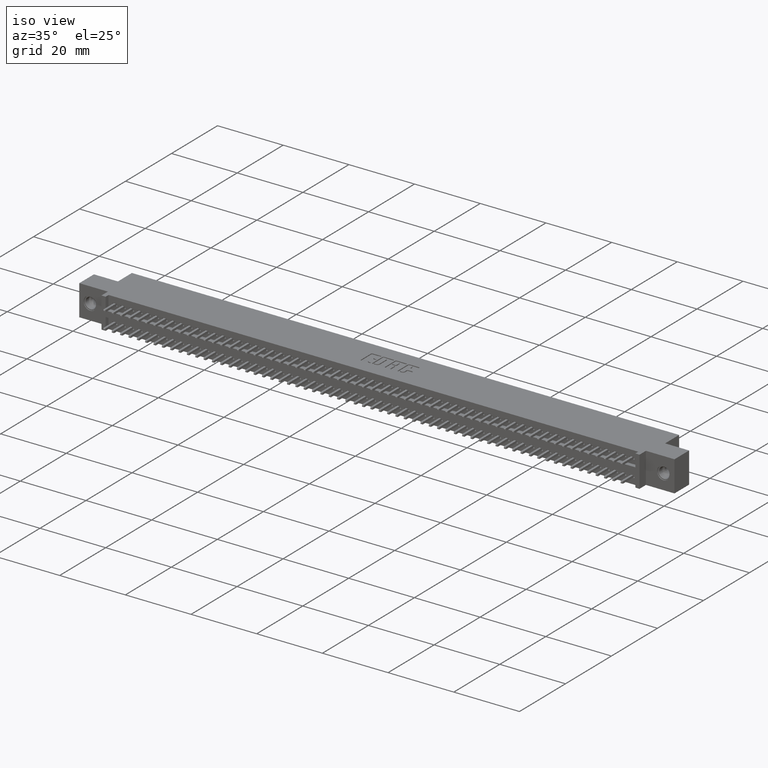
[diagram: clean part render]
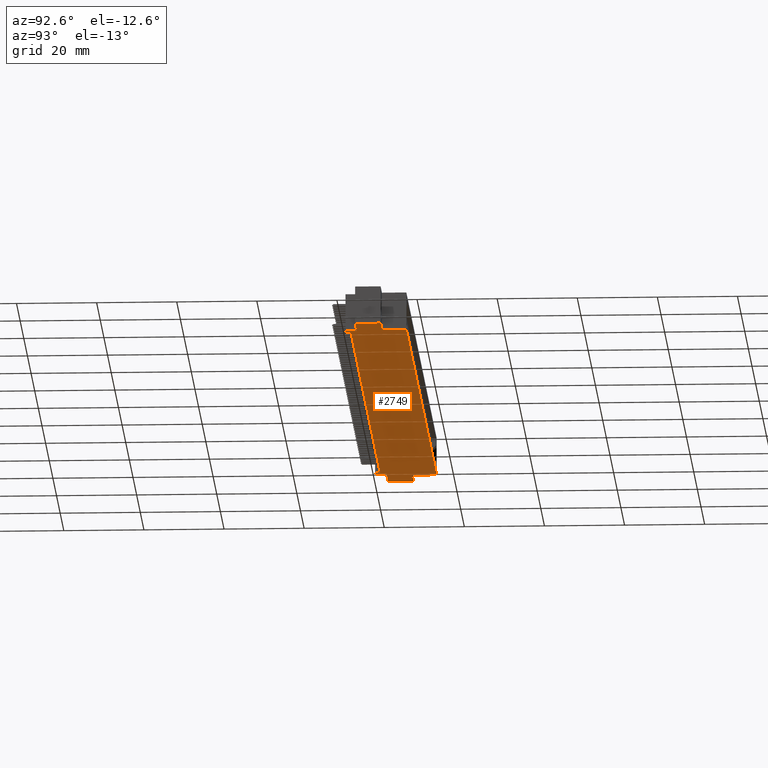
[diagram: tour spotlight — one face highlighted and labeled with its STEP entity id]
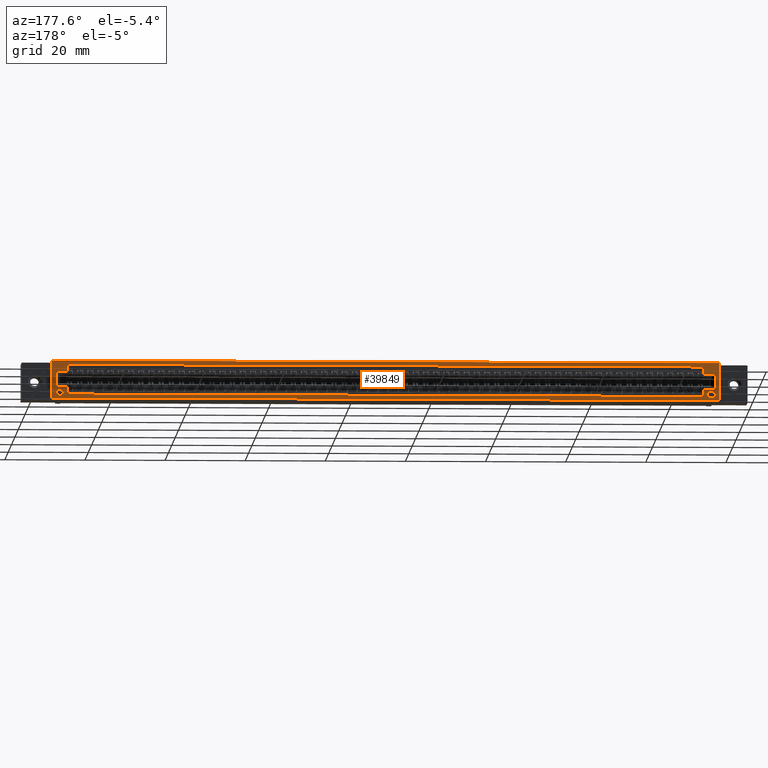
[diagram: tour spotlight — one face highlighted and labeled with its STEP entity id]
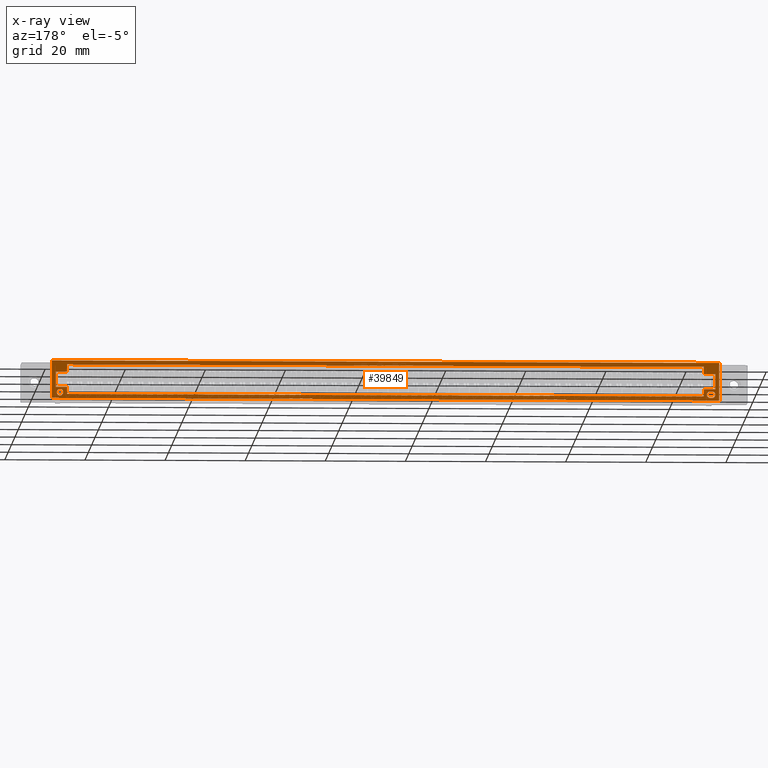
[diagram: x-ray of the same camera — body ghosted, this tour face saturated]
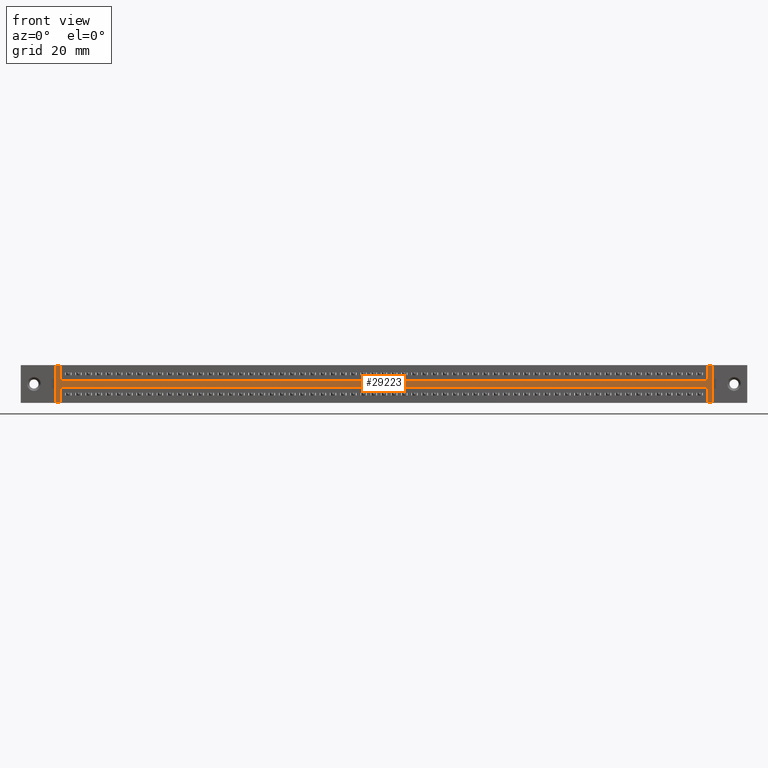
[diagram: tour spotlight — one face highlighted and labeled with its STEP entity id]
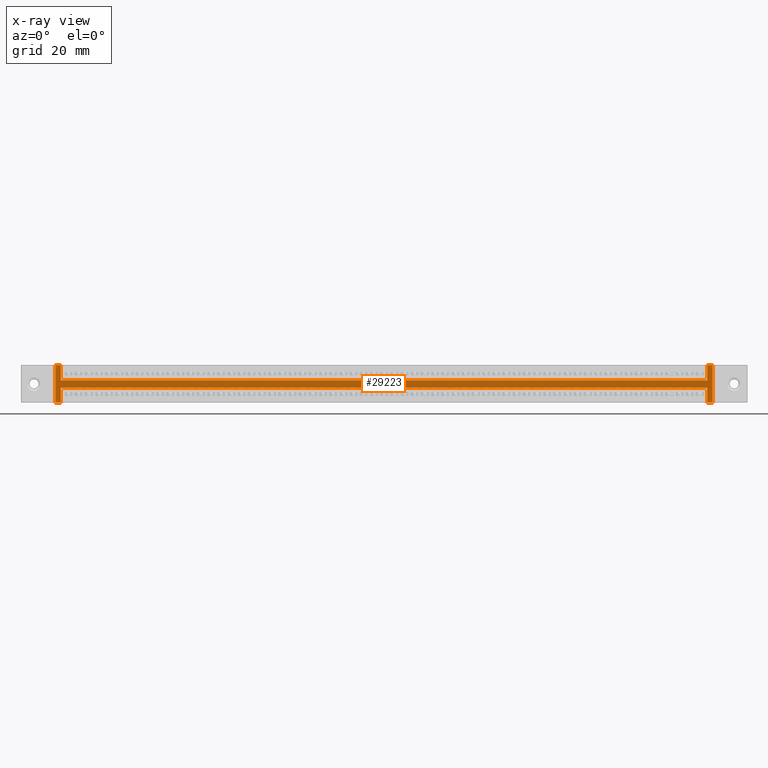
[diagram: x-ray of the same camera — body ghosted, this tour face saturated]
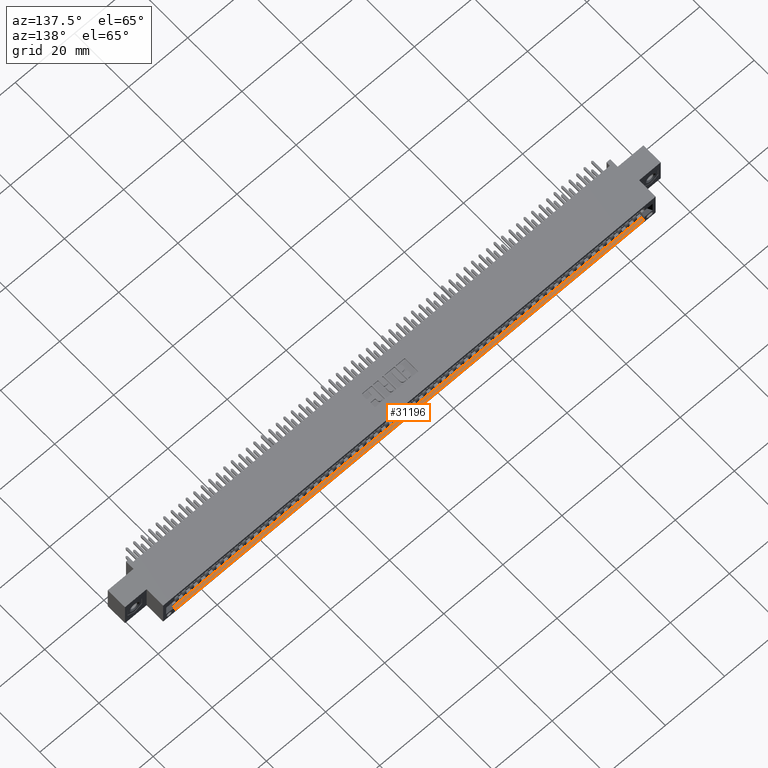
[diagram: tour spotlight — one face highlighted and labeled with its STEP entity id]
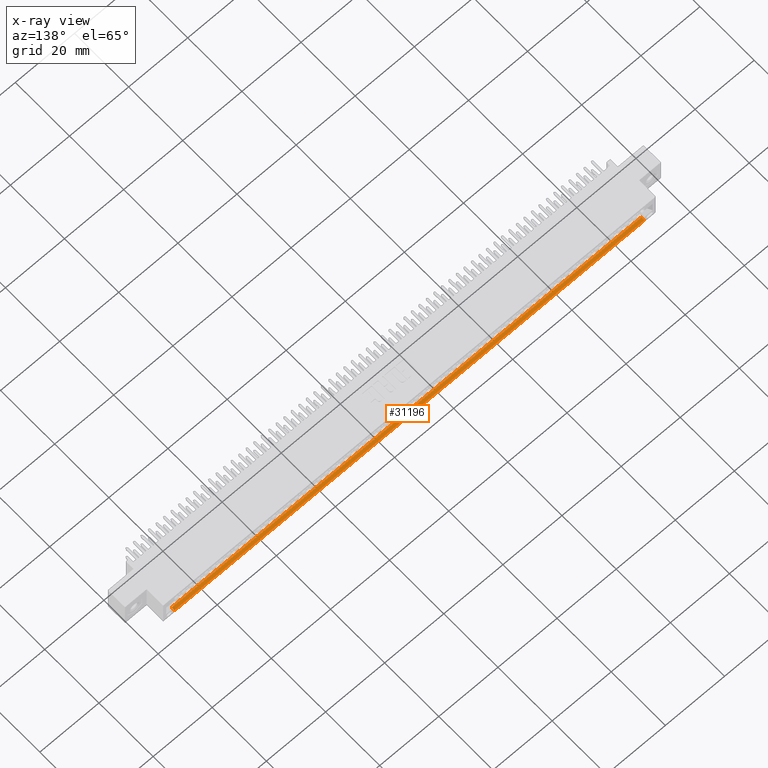
[diagram: x-ray of the same camera — body ghosted, this tour face saturated]
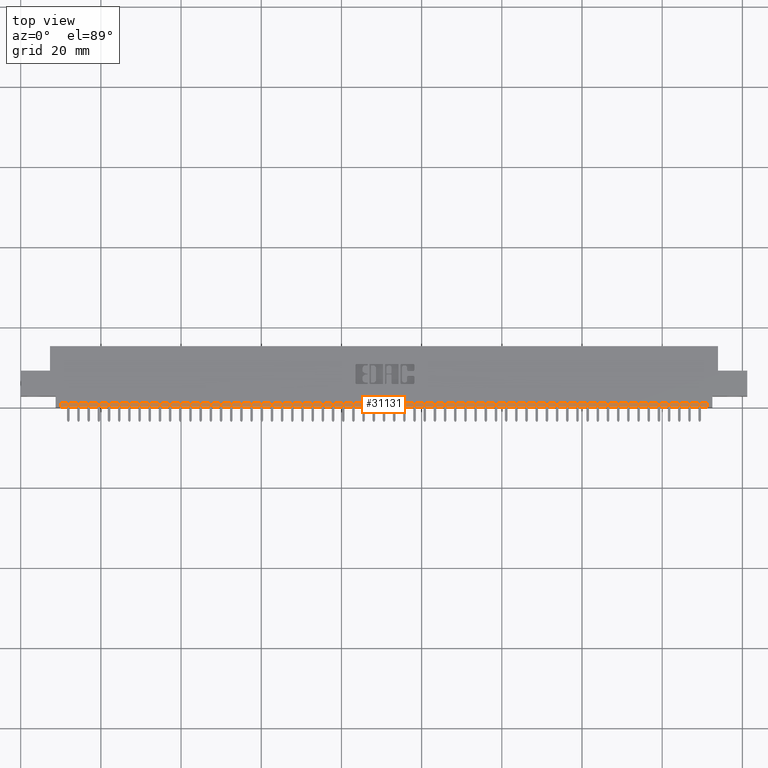
[diagram: tour spotlight — one face highlighted and labeled with its STEP entity id]
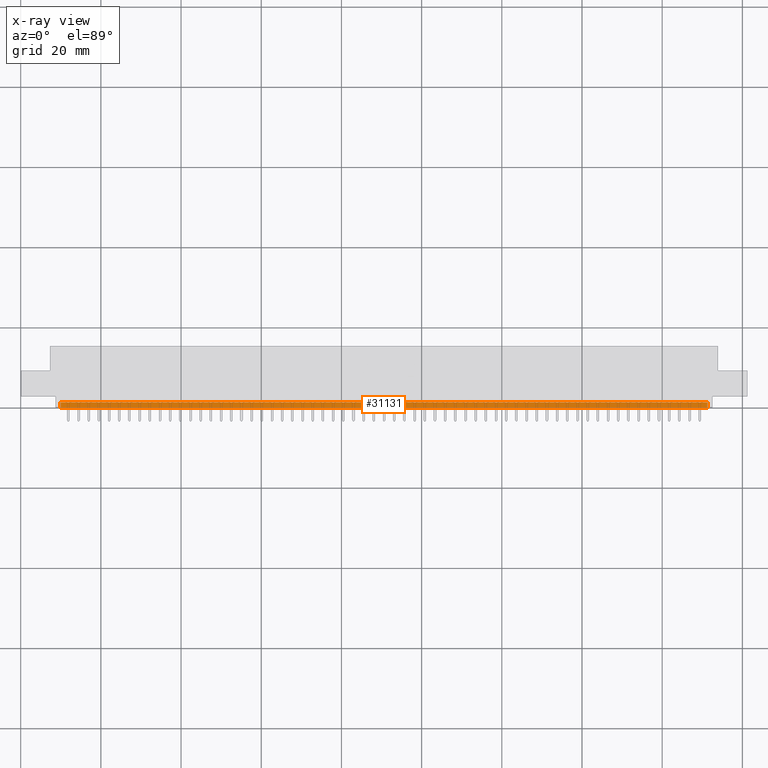
[diagram: x-ray of the same camera — body ghosted, this tour face saturated]
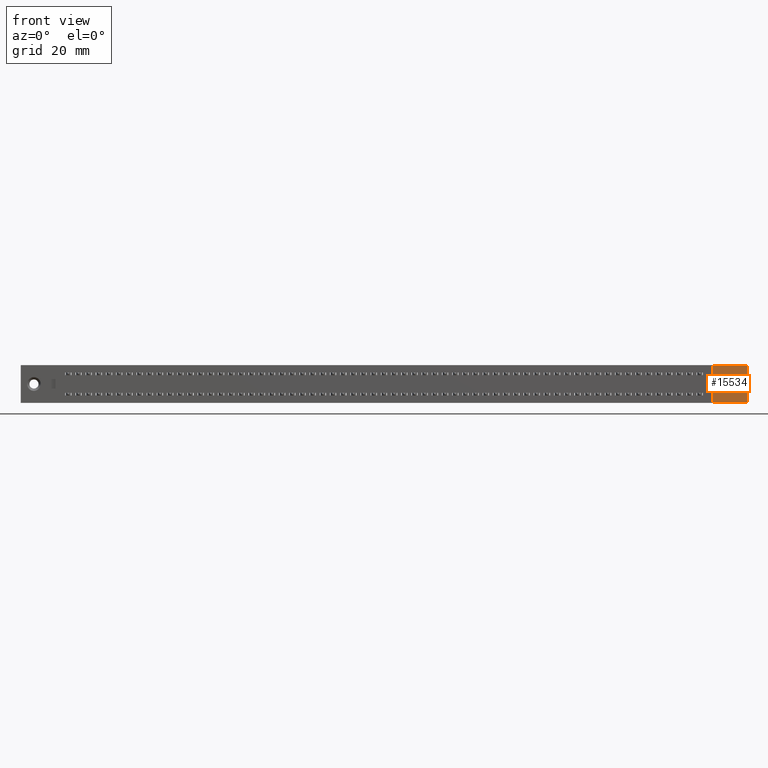
[diagram: tour spotlight — one face highlighted and labeled with its STEP entity id]
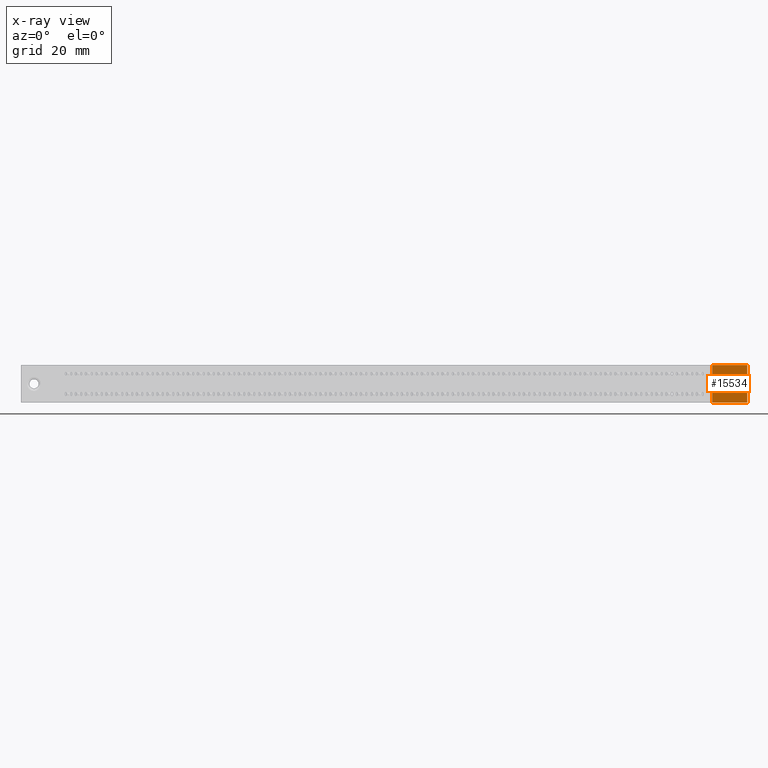
[diagram: x-ray of the same camera — body ghosted, this tour face saturated]
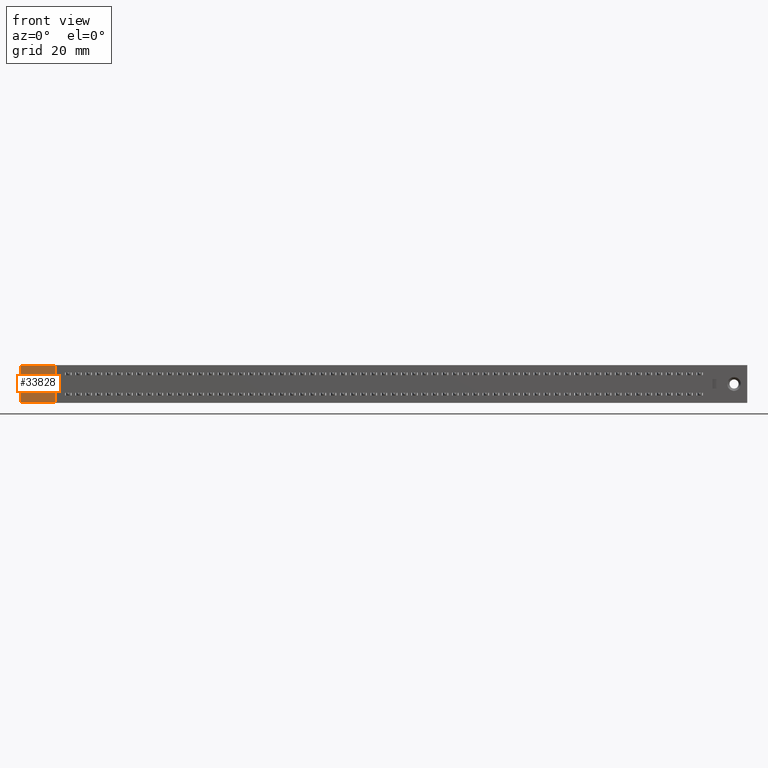
[diagram: tour spotlight — one face highlighted and labeled with its STEP entity id]
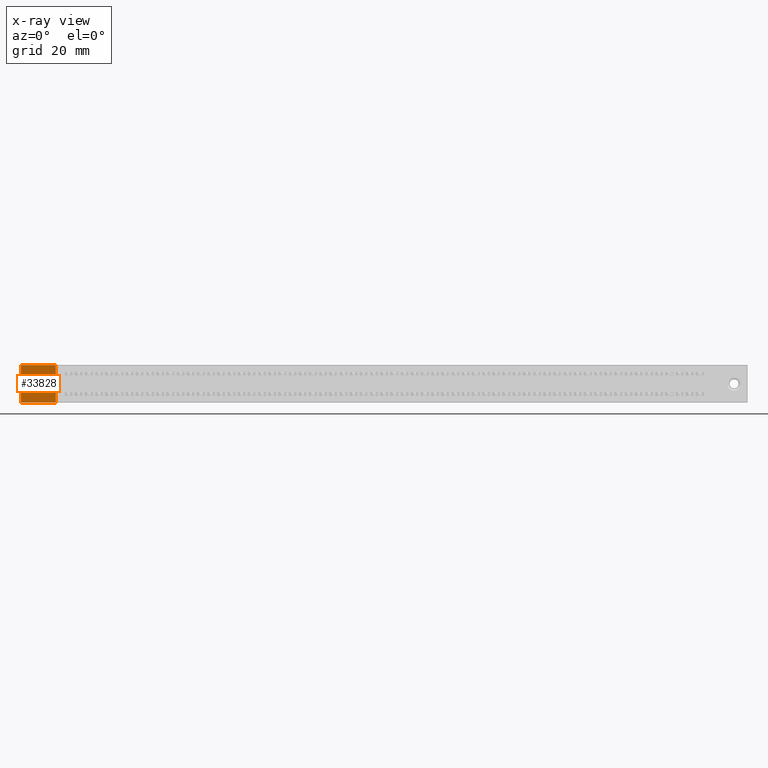
[diagram: x-ray of the same camera — body ghosted, this tour face saturated]
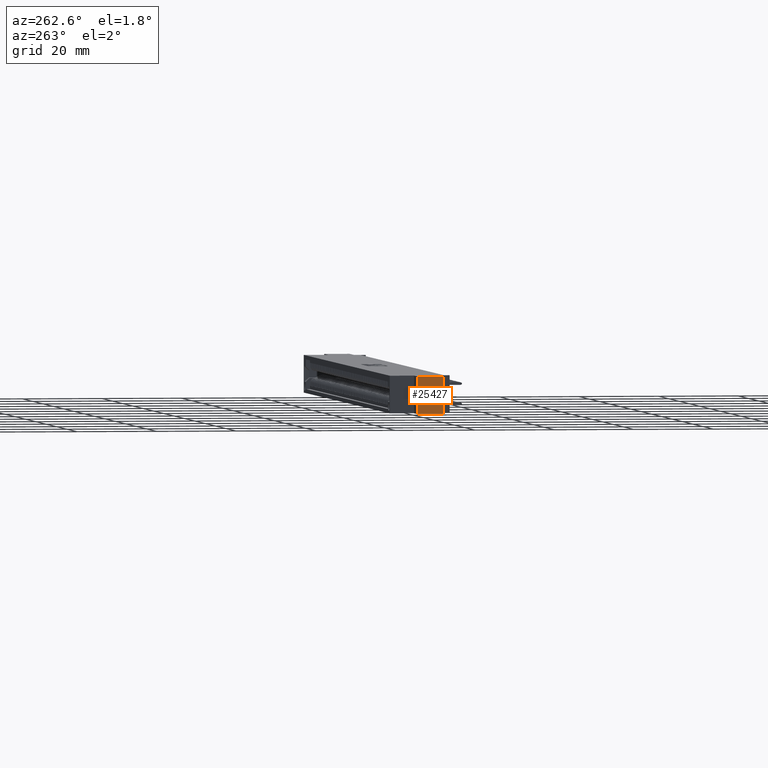
[diagram: tour spotlight — one face highlighted and labeled with its STEP entity id]
A machine part: a face-by-face anatomy tour. The part has 6490 B-rep faces; the first image is the clean iso view, then the 8 largest visible faces are spotlighted one at a time (largest first), each with its STEP entity span.

Face 1 — auxiliary view, entity #2749. In plain terms, the highlighted planar face has unit normal (-0, 0, 1).
Definition (entity closure, byte-faithful):
#386 = LINE ( 'NONE', #6628, #47283 ) ;
#1014 = VECTOR ( 'NONE', #23537, 39.37007874015748100 ) ;
#1293 = CARTESIAN_POINT ( 'NONE',  ( 6.742500000000000600, 0.0000000000000000000, -0.3700000000000000000 ) ) ;
#1305 = ORIENTED_EDGE ( 'NONE', *, *, #18130, .T. ) ;
#1353 = EDGE_CURVE ( 'NONE', #41168, #35369, #10820, .T. ) ;
#2204 = VERTEX_POINT ( 'NONE', #46683 ) ;
#2444 = CARTESIAN_POINT ( 'NONE',  ( 6.847500000000001000, 0.5999999999999999800, -0.3699999999999989400 ) ) ;
#2749 = ADVANCED_FACE ( 'NONE', ( #7249 ), #31067, .F. ) ;
#4624 = VERTEX_POINT ( 'NONE', #32736 ) ;
#5223 = VERTEX_POINT ( 'NONE', #36078 ) ;
#5721 = CARTESIAN_POINT ( 'NONE',  ( 7.135000000000000700, 0.1100000000000000000, -0.3699999999999991100 ) ) ;
#6008 = CARTESIAN_POINT ( 'NONE',  ( 0.0000000000000000000, 0.0000000000000000000, -0.3700000000000001600 ) ) ;
#6345 = VECTOR ( 'NONE', #41520, 39.37007874015748100 ) ;
#6404 = ORIENTED_EDGE ( 'NONE', *, *, #16521, .F. ) ;
#6628 = CARTESIAN_POINT ( 'NONE',  ( 0.0000000000000000000, 0.5999999999999999800, -0.3700000000000001600 ) ) ;
#6899 = CARTESIAN_POINT ( 'NONE',  ( 6.792500000000000400, 0.1100000000000000000, -0.3699999999999992200 ) ) ;
#7249 = FACE_OUTER_BOUND ( 'NONE', #18301, .T. ) ;
#8094 = VECTOR ( 'NONE', #44973, 39.37007874015748100 ) ;
#8217 = ORIENTED_EDGE ( 'NONE', *, *, #26808, .F. ) ;
#8926 = CARTESIAN_POINT ( 'NONE',  ( 0.0000000000000000000, 0.5999999999999999800, -0.3700000000000001600 ) ) ;
#8941 = LINE ( 'NONE', #45469, #45989 ) ;
#9867 = CARTESIAN_POINT ( 'NONE',  ( 6.742500000000000600, 0.05000000000000000300, -0.3700000000000000000 ) ) ;
#9896 = DIRECTION ( 'NONE',  ( -1.000000000000000000, -0.0000000000000000000, -0.0000000000000000000 ) ) ;
#10104 = EDGE_CURVE ( 'NONE', #37028, #23963, #24907, .T. ) ;
#10128 = DIRECTION ( 'NONE',  ( -0.0000000000000000000, 1.000000000000000000, -0.0000000000000000000 ) ) ;
#10161 = CARTESIAN_POINT ( 'NONE',  ( 0.3424999999999999700, 0.0000000000000000000, -0.3700000000000001600 ) ) ;
#10268 = CARTESIAN_POINT ( 'NONE',  ( 0.3924999999999996800, 0.05000000000000000300, -0.3700000000000000000 ) ) ;
#10642 = VERTEX_POINT ( 'NONE', #12757 ) ;
#10772 = AXIS2_PLACEMENT_3D ( 'NONE', #8926, #34776, #12611 ) ;
#10820 = LINE ( 'NONE', #38303, #1014 ) ;
#11043 = VECTOR ( 'NONE', #25601, 39.37007874015748100 ) ;
#11123 = VECTOR ( 'NONE', #28573, 39.37007874015748100 ) ;
#11904 = CARTESIAN_POINT ( 'NONE',  ( 7.135000000000000700, 0.5999999999999999800, -0.3700000000000000000 ) ) ;
#12297 = EDGE_CURVE ( 'NONE', #5223, #25773, #26999, .T. ) ;
#12611 = DIRECTION ( 'NONE',  ( 1.000000000000000000, 0.0000000000000000000, 1.914399434943422300E-017 ) ) ;
#12757 = CARTESIAN_POINT ( 'NONE',  ( 0.3424999999999999700, 0.1100000000000000000, -0.3700000000000000000 ) ) ;
#13529 = VECTOR ( 'NONE', #39709, 39.37007874015748100 ) ;
#13644 = LINE ( 'NONE', #28329, #40881 ) ;
#14898 = CARTESIAN_POINT ( 'NONE',  ( 0.3924999999999996800, 0.05000000000000000300, -0.3700000000000000000 ) ) ;
#16521 = EDGE_CURVE ( 'NONE', #25773, #38796, #40659, .T. ) ;
#17085 = LINE ( 'NONE', #17569, #35663 ) ;
#17569 = CARTESIAN_POINT ( 'NONE',  ( 7.135000000000000700, 0.1100000000000000000, -0.3699999999999991100 ) ) ;
#18130 = EDGE_CURVE ( 'NONE', #28289, #24417, #36436, .T. ) ;
#18301 = EDGE_LOOP ( 'NONE', ( #34475, #1305, #23394, #6404, #38298, #46553, #40384, #40433, #45888, #47029, #18831, #38368, #44720, #41422, #8217, #41890 ) ) ;
#18579 = DIRECTION ( 'NONE',  ( 1.000000000000000000, 0.0000000000000000000, 0.0000000000000000000 ) ) ;
#18831 = ORIENTED_EDGE ( 'NONE', *, *, #10104, .F. ) ;
#19014 = CARTESIAN_POINT ( 'NONE',  ( 6.792500000000000400, 0.1100000000000000000, -0.3699999999999992200 ) ) ;
#19136 = DIRECTION ( 'NONE',  ( -1.000000000000000000, 0.0000000000000000000, 3.800831991185067400E-015 ) ) ;
#19697 = VERTEX_POINT ( 'NONE', #25934 ) ;
#19998 = CARTESIAN_POINT ( 'NONE',  ( 6.847500000000001000, 0.3599999999999999900, -0.3699999999999989400 ) ) ;
#20810 = EDGE_CURVE ( 'NONE', #28289, #45726, #17085, .T. ) ;
#21023 = CARTESIAN_POINT ( 'NONE',  ( 0.0000000000000000000, 0.3599999999999999900, -0.3700000000000001600 ) ) ;
#21750 = EDGE_CURVE ( 'NONE', #10642, #35420, #35590, .T. ) ;
#21789 = LINE ( 'NONE', #24809, #30513 ) ;
#21867 = CARTESIAN_POINT ( 'NONE',  ( 0.0000000000000000000, 0.1100000000000000000, -0.3700000000000001600 ) ) ;
#21928 = EDGE_CURVE ( 'NONE', #35369, #19697, #8941, .T. ) ;
#23394 = ORIENTED_EDGE ( 'NONE', *, *, #38436, .T. ) ;
#23537 = DIRECTION ( 'NONE',  ( -0.0000000000000000000, 1.000000000000000000, -0.0000000000000000000 ) ) ;
#23963 = VERTEX_POINT ( 'NONE', #31046 ) ;
#24417 = VERTEX_POINT ( 'NONE', #44950 ) ;
#24786 = LINE ( 'NONE', #11904, #6345 ) ;
#24809 = CARTESIAN_POINT ( 'NONE',  ( 0.2874999999999999800, 0.3599999999999999900, -0.3700000000000001600 ) ) ;
#24907 = LINE ( 'NONE', #21023, #43473 ) ;
#25001 = DIRECTION ( 'NONE',  ( -0.0000000000000000000, -1.000000000000000000, -0.0000000000000000000 ) ) ;
#25601 = DIRECTION ( 'NONE',  ( 1.000000000000000000, 0.0000000000000000000, 3.988099260823742800E-016 ) ) ;
#25706 = VECTOR ( 'NONE', #40778, 39.37007874015748100 ) ;
#25773 = VERTEX_POINT ( 'NONE', #9867 ) ;
#25934 = CARTESIAN_POINT ( 'NONE',  ( 0.2874999999999999800, 0.5999999999999999800, -0.3700000000000001600 ) ) ;
#26016 = CARTESIAN_POINT ( 'NONE',  ( 0.3424999999999999700, 0.1100000000000000000, -0.3700000000000000000 ) ) ;
#26434 = CARTESIAN_POINT ( 'NONE',  ( 7.135000000000000700, 0.3599999999999999900, -0.3700000000000000000 ) ) ;
#26545 = EDGE_CURVE ( 'NONE', #23963, #30038, #386, .T. ) ;
#26808 = EDGE_CURVE ( 'NONE', #4624, #41168, #26927, .T. ) ;
#26927 = LINE ( 'NONE', #26434, #45512 ) ;
#26999 = LINE ( 'NONE', #14898, #45589 ) ;
#27602 = VECTOR ( 'NONE', #35595, 39.37007874015748100 ) ;
#28289 = VERTEX_POINT ( 'NONE', #6899 ) ;
#28318 = EDGE_CURVE ( 'NONE', #30038, #10642, #30730, .T. ) ;
#28329 = CARTESIAN_POINT ( 'NONE',  ( 0.0000000000000000000, 0.0000000000000000000, -0.3700000000000001600 ) ) ;
#28573 = DIRECTION ( 'NONE',  ( -0.0000000000000000000, -1.000000000000000000, -0.0000000000000000000 ) ) ;
#30038 = VERTEX_POINT ( 'NONE', #30829 ) ;
#30513 = VECTOR ( 'NONE', #10128, 39.37007874015748100 ) ;
#30730 = LINE ( 'NONE', #21867, #11043 ) ;
#30829 = CARTESIAN_POINT ( 'NONE',  ( 0.0000000000000000000, 0.1100000000000000000, -0.3700000000000001600 ) ) ;
#31046 = CARTESIAN_POINT ( 'NONE',  ( 0.0000000000000000000, 0.3599999999999999900, -0.3700000000000001600 ) ) ;
#31067 = PLANE ( 'NONE',  #10772 ) ;
#31310 = EDGE_CURVE ( 'NONE', #37028, #19697, #21789, .T. ) ;
#31928 = EDGE_CURVE ( 'NONE', #2204, #35420, #13644, .T. ) ;
#32736 = CARTESIAN_POINT ( 'NONE',  ( 7.135000000000000700, 0.3600000000000000400, -0.3700000000000000000 ) ) ;
#34475 = ORIENTED_EDGE ( 'NONE', *, *, #20810, .F. ) ;
#34776 = DIRECTION ( 'NONE',  ( -1.914399434943422300E-017, 0.0000000000000000000, 1.000000000000000000 ) ) ;
#35216 = CARTESIAN_POINT ( 'NONE',  ( 0.2874999999999999800, 0.3599999999999999900, -0.3700000000000001600 ) ) ;
#35369 = VERTEX_POINT ( 'NONE', #2444 ) ;
#35420 = VERTEX_POINT ( 'NONE', #10161 ) ;
#35565 = LINE ( 'NONE', #10268, #13529 ) ;
#35590 = LINE ( 'NONE', #26016, #25706 ) ;
#35595 = DIRECTION ( 'NONE',  ( -1.000000000000000000, -0.0000000000000000000, -1.914399434943422000E-017 ) ) ;
#35663 = VECTOR ( 'NONE', #36053, 39.37007874015748100 ) ;
#35956 = DIRECTION ( 'NONE',  ( -1.000000000000000000, -0.0000000000000000000, -1.914399434943422000E-017 ) ) ;
#36053 = DIRECTION ( 'NONE',  ( 1.000000000000000000, -0.0000000000000000000, 1.994049630411871400E-016 ) ) ;
#36078 = CARTESIAN_POINT ( 'NONE',  ( 0.3924999999999996800, 0.05000000000000000300, -0.3700000000000000000 ) ) ;
#36436 = LINE ( 'NONE', #19014, #8094 ) ;
#37028 = VERTEX_POINT ( 'NONE', #35216 ) ;
#37477 = LINE ( 'NONE', #6008, #27602 ) ;
#38298 = ORIENTED_EDGE ( 'NONE', *, *, #12297, .F. ) ;
#38303 = CARTESIAN_POINT ( 'NONE',  ( 6.847500000000001000, 0.3599999999999999900, -0.3699999999999989400 ) ) ;
#38368 = ORIENTED_EDGE ( 'NONE', *, *, #31310, .T. ) ;
#38436 = EDGE_CURVE ( 'NONE', #24417, #38796, #37477, .T. ) ;
#38796 = VERTEX_POINT ( 'NONE', #1293 ) ;
#39709 = DIRECTION ( 'NONE',  ( -0.0000000000000000000, -1.000000000000000000, -0.0000000000000000000 ) ) ;
#40384 = ORIENTED_EDGE ( 'NONE', *, *, #31928, .T. ) ;
#40433 = ORIENTED_EDGE ( 'NONE', *, *, #21750, .F. ) ;
#40659 = LINE ( 'NONE', #43321, #11123 ) ;
#40778 = DIRECTION ( 'NONE',  ( -0.0000000000000000000, -1.000000000000000000, -0.0000000000000000000 ) ) ;
#40881 = VECTOR ( 'NONE', #35956, 39.37007874015748100 ) ;
#41168 = VERTEX_POINT ( 'NONE', #19998 ) ;
#41422 = ORIENTED_EDGE ( 'NONE', *, *, #1353, .F. ) ;
#41520 = DIRECTION ( 'NONE',  ( -0.0000000000000000000, -1.000000000000000000, -0.0000000000000000000 ) ) ;
#41890 = ORIENTED_EDGE ( 'NONE', *, *, #44938, .T. ) ;
#42078 = EDGE_CURVE ( 'NONE', #5223, #2204, #35565, .T. ) ;
#43321 = CARTESIAN_POINT ( 'NONE',  ( 6.742500000000000600, 0.05000000000000000300, -0.3700000000000000000 ) ) ;
#43473 = VECTOR ( 'NONE', #9896, 39.37007874015748100 ) ;
#44720 = ORIENTED_EDGE ( 'NONE', *, *, #21928, .F. ) ;
#44938 = EDGE_CURVE ( 'NONE', #4624, #45726, #24786, .T. ) ;
#44950 = CARTESIAN_POINT ( 'NONE',  ( 6.792500000000000400, 0.0000000000000000000, -0.3699999999999992200 ) ) ;
#44973 = DIRECTION ( 'NONE',  ( -0.0000000000000000000, -1.000000000000000000, -0.0000000000000000000 ) ) ;
#45469 = CARTESIAN_POINT ( 'NONE',  ( 0.0000000000000000000, 0.5999999999999999800, -0.3700000000000001600 ) ) ;
#45512 = VECTOR ( 'NONE', #19136, 39.37007874015748100 ) ;
#45589 = VECTOR ( 'NONE', #18579, 39.37007874015748100 ) ;
#45621 = DIRECTION ( 'NONE',  ( -1.000000000000000000, -0.0000000000000000000, -1.914399434943422000E-017 ) ) ;
#45726 = VERTEX_POINT ( 'NONE', #5721 ) ;
#45888 = ORIENTED_EDGE ( 'NONE', *, *, #28318, .F. ) ;
#45989 = VECTOR ( 'NONE', #45621, 39.37007874015748100 ) ;
#46553 = ORIENTED_EDGE ( 'NONE', *, *, #42078, .T. ) ;
#46683 = CARTESIAN_POINT ( 'NONE',  ( 0.3924999999999996800, 0.0000000000000000000, -0.3700000000000000000 ) ) ;
#47029 = ORIENTED_EDGE ( 'NONE', *, *, #26545, .F. ) ;
#47283 = VECTOR ( 'NONE', #25001, 39.37007874015748100 ) ;

Face 2 — auxiliary view, entity #39849. An x-ray twin of the same camera follows (body ghosted, this face saturated) — the face is partly hidden behind the body. In plain terms, the highlighted planar face has unit normal (0, -1, 0).
Definition (entity closure, byte-faithful):
#919 = LINE ( 'NONE', #15774, #10727 ) ;
#983 = EDGE_CURVE ( 'NONE', #9049, #14453, #28205, .T. ) ;
#1047 = ORIENTED_EDGE ( 'NONE', *, *, #8856, .T. ) ;
#1298 = VECTOR ( 'NONE', #14306, 39.37007874015748100 ) ;
#1432 = CARTESIAN_POINT ( 'NONE',  ( 0.3274999999999991800, 0.5999999999999999800, -0.1089999999999994000 ) ) ;
#2313 = LINE ( 'NONE', #17992, #10962 ) ;
#2444 = CARTESIAN_POINT ( 'NONE',  ( 6.847500000000001000, 0.5999999999999999800, -0.3699999999999989400 ) ) ;
#3029 = ORIENTED_EDGE ( 'NONE', *, *, #21173, .T. ) ;
#3051 = ORIENTED_EDGE ( 'NONE', *, *, #45775, .F. ) ;
#3148 = CARTESIAN_POINT ( 'NONE',  ( 0.0000000000000000000, 0.5999999999999999800, -0.3700000000000001600 ) ) ;
#3312 = FACE_BOUND ( 'NONE', #30768, .T. ) ;
#3409 = EDGE_CURVE ( 'NONE', #30914, #18980, #37937, .T. ) ;
#3455 = DIRECTION ( 'NONE',  ( 0.0000000000000000000, 0.0000000000000000000, -1.000000000000000000 ) ) ;
#3600 = CIRCLE ( 'NONE', #32230, 0.03200000000000033400 ) ;
#3835 = CARTESIAN_POINT ( 'NONE',  ( 6.697500000000001600, 0.5999999999999999800, -0.1089999999999994000 ) ) ;
#4171 = CARTESIAN_POINT ( 'NONE',  ( 6.697500000000001600, 0.5999999999999999800, -0.2610000000000007300 ) ) ;
#4833 = AXIS2_PLACEMENT_3D ( 'NONE', #3148, #10558, #36446 ) ;
#5171 = ORIENTED_EDGE ( 'NONE', *, *, #15674, .T. ) ;
#5423 = VECTOR ( 'NONE', #37294, 39.37007874015748100 ) ;
#5848 = CARTESIAN_POINT ( 'NONE',  ( 0.3564999999999999300, 0.5999999999999999800, -0.2820000000000000800 ) ) ;
#6163 = EDGE_CURVE ( 'NONE', #23294, #9049, #17442, .T. ) ;
#6301 = CARTESIAN_POINT ( 'NONE',  ( 6.807500000000001000, 0.5999999999999999800, -0.3700000000000001600 ) ) ;
#6838 = CARTESIAN_POINT ( 'NONE',  ( 6.847499999999999300, 0.5999999999999999800, 0.0000000000000000000 ) ) ;
#7435 = VECTOR ( 'NONE', #14051, 39.37007874015748100 ) ;
#7544 = VERTEX_POINT ( 'NONE', #21636 ) ;
#7687 = CARTESIAN_POINT ( 'NONE',  ( 6.807500000000001000, 0.5999999999999999800, -0.1089999999999994000 ) ) ;
#8135 = VERTEX_POINT ( 'NONE', #43482 ) ;
#8822 = VECTOR ( 'NONE', #32152, 39.37007874015748100 ) ;
#8856 = EDGE_CURVE ( 'NONE', #42758, #13107, #17163, .T. ) ;
#8916 = VECTOR ( 'NONE', #15843, 39.37007874015748100 ) ;
#8941 = LINE ( 'NONE', #45469, #45989 ) ;
#9049 = VERTEX_POINT ( 'NONE', #7687 ) ;
#9554 = EDGE_CURVE ( 'NONE', #8135, #29273, #11105, .T. ) ;
#9565 = AXIS2_PLACEMENT_3D ( 'NONE', #17281, #43221, #21000 ) ;
#9799 = CARTESIAN_POINT ( 'NONE',  ( 0.4374999999999998900, 0.5999999999999999800, -0.2610000000000007300 ) ) ;
#10265 = EDGE_CURVE ( 'NONE', #42758, #19697, #16777, .T. ) ;
#10558 = DIRECTION ( 'NONE',  ( 0.0000000000000000000, -1.000000000000000000, 0.0000000000000000000 ) ) ;
#10612 = ORIENTED_EDGE ( 'NONE', *, *, #29582, .T. ) ;
#10727 = VECTOR ( 'NONE', #41684, 39.37007874015748100 ) ;
#10962 = VECTOR ( 'NONE', #40375, 39.37007874015748100 ) ;
#11076 = DIRECTION ( 'NONE',  ( 0.0000000000000000000, 1.000000000000000000, 0.0000000000000000000 ) ) ;
#11105 = LINE ( 'NONE', #40218, #1298 ) ;
#11273 = CIRCLE ( 'NONE', #37608, 0.03100000000000002400 ) ;
#11403 = CARTESIAN_POINT ( 'NONE',  ( 0.3564999999999999800, 0.5999999999999999800, -0.3440000000000000800 ) ) ;
#11587 = EDGE_CURVE ( 'NONE', #23055, #25732, #37527, .T. ) ;
#12132 = CARTESIAN_POINT ( 'NONE',  ( 0.0000000000000000000, 0.5999999999999999800, -0.2610000000000007300 ) ) ;
#12366 = VERTEX_POINT ( 'NONE', #9799 ) ;
#12517 = DIRECTION ( 'NONE',  ( 0.0000000000000000000, 1.000000000000000000, 0.0000000000000000000 ) ) ;
#12684 = ORIENTED_EDGE ( 'NONE', *, *, #42498, .F. ) ;
#13107 = VERTEX_POINT ( 'NONE', #21494 ) ;
#13189 = VERTEX_POINT ( 'NONE', #14560 ) ;
#13998 = DIRECTION ( 'NONE',  ( 1.000000000000000000, 0.0000000000000000000, 3.104372720073026700E-015 ) ) ;
#14051 = DIRECTION ( 'NONE',  ( -1.000000000000000000, 0.0000000000000000000, 0.0000000000000000000 ) ) ;
#14306 = DIRECTION ( 'NONE',  ( 1.000000000000000000, 0.0000000000000000000, -5.454968038466980200E-018 ) ) ;
#14453 = VERTEX_POINT ( 'NONE', #3835 ) ;
#14560 = CARTESIAN_POINT ( 'NONE',  ( 0.3784999999999999500, 0.5999999999999999800, -0.3440000000000000800 ) ) ;
#14647 = VECTOR ( 'NONE', #16349, 39.37007874015748100 ) ;
#15173 = DIRECTION ( 'NONE',  ( -1.000000000000000000, -0.0000000000000000000, 1.090993607693396000E-017 ) ) ;
#15567 = CARTESIAN_POINT ( 'NONE',  ( 0.3274999999999991800, 0.5999999999999999800, -0.2610000000000007300 ) ) ;
#15674 = EDGE_CURVE ( 'NONE', #19847, #12366, #38424, .T. ) ;
#15774 = CARTESIAN_POINT ( 'NONE',  ( 0.0000000000000000000, 0.5999999999999999800, -0.2610000000000007300 ) ) ;
#15795 = LINE ( 'NONE', #46005, #14647 ) ;
#15805 = LINE ( 'NONE', #40199, #44215 ) ;
#15843 = DIRECTION ( 'NONE',  ( 1.000000000000000000, 0.0000000000000000000, 0.0000000000000000000 ) ) ;
#15877 = VERTEX_POINT ( 'NONE', #5848 ) ;
#16349 = DIRECTION ( 'NONE',  ( 0.0000000000000000000, 0.0000000000000000000, 1.000000000000000000 ) ) ;
#16681 = LINE ( 'NONE', #39756, #35241 ) ;
#16777 = LINE ( 'NONE', #25563, #35347 ) ;
#16928 = EDGE_CURVE ( 'NONE', #25732, #23055, #3600, .T. ) ;
#16957 = DIRECTION ( 'NONE',  ( 0.0000000000000000000, 1.000000000000000000, 0.0000000000000000000 ) ) ;
#17163 = LINE ( 'NONE', #17821, #35744 ) ;
#17166 = ORIENTED_EDGE ( 'NONE', *, *, #21422, .F. ) ;
#17281 = CARTESIAN_POINT ( 'NONE',  ( 0.3564999999999999800, 0.5999999999999999800, -0.3130000000000000600 ) ) ;
#17442 = LINE ( 'NONE', #6301, #8822 ) ;
#17805 = PLANE ( 'NONE',  #4833 ) ;
#17821 = CARTESIAN_POINT ( 'NONE',  ( 0.0000000000000000000, 0.5999999999999999800, 0.0000000000000000000 ) ) ;
#17992 = CARTESIAN_POINT ( 'NONE',  ( 0.0000000000000000000, 0.5999999999999999800, -0.1089999999999994000 ) ) ;
#18210 = VECTOR ( 'NONE', #15173, 39.37007874015748100 ) ;
#18563 = ORIENTED_EDGE ( 'NONE', *, *, #10265, .F. ) ;
#18980 = VERTEX_POINT ( 'NONE', #21099 ) ;
#19697 = VERTEX_POINT ( 'NONE', #25934 ) ;
#19823 = CARTESIAN_POINT ( 'NONE',  ( 0.4374999999999998900, 0.5999999999999999800, -0.1089999999999994000 ) ) ;
#19847 = VERTEX_POINT ( 'NONE', #15567 ) ;
#19993 = ORIENTED_EDGE ( 'NONE', *, *, #33458, .F. ) ;
#20816 = CIRCLE ( 'NONE', #9565, 0.03099999999999998900 ) ;
#21000 = DIRECTION ( 'NONE',  ( 0.0000000000000000000, 0.0000000000000000000, 1.000000000000000000 ) ) ;
#21099 = CARTESIAN_POINT ( 'NONE',  ( 0.4375000000000010000, 0.5999999999999999800, -0.3310000000000007400 ) ) ;
#21173 = EDGE_CURVE ( 'NONE', #26794, #23294, #919, .T. ) ;
#21422 = EDGE_CURVE ( 'NONE', #7544, #13189, #11273, .T. ) ;
#21484 = CARTESIAN_POINT ( 'NONE',  ( 0.2874999999999999800, 0.5999999999999999800, 0.0000000000000000000 ) ) ;
#21494 = CARTESIAN_POINT ( 'NONE',  ( 6.847499999999999300, 0.5999999999999999800, 0.0000000000000000000 ) ) ;
#21526 = DIRECTION ( 'NONE',  ( 1.000000000000000000, 0.0000000000000000000, 0.0000000000000000000 ) ) ;
#21636 = CARTESIAN_POINT ( 'NONE',  ( 0.3784999999999999500, 0.5999999999999999800, -0.2820000000000000300 ) ) ;
#21928 = EDGE_CURVE ( 'NONE', #35369, #19697, #8941, .T. ) ;
#22902 = FACE_BOUND ( 'NONE', #39134, .T. ) ;
#23055 = VERTEX_POINT ( 'NONE', #26397 ) ;
#23294 = VERTEX_POINT ( 'NONE', #34975 ) ;
#24752 = ORIENTED_EDGE ( 'NONE', *, *, #38791, .T. ) ;
#25056 = LINE ( 'NONE', #11403, #5423 ) ;
#25563 = CARTESIAN_POINT ( 'NONE',  ( 0.2874999999999999800, 0.5999999999999999800, 0.0000000000000000000 ) ) ;
#25732 = VERTEX_POINT ( 'NONE', #42890 ) ;
#25934 = CARTESIAN_POINT ( 'NONE',  ( 0.2874999999999999800, 0.5999999999999999800, -0.3700000000000001600 ) ) ;
#26165 = VECTOR ( 'NONE', #47455, 39.37007874015748100 ) ;
#26276 = VERTEX_POINT ( 'NONE', #19823 ) ;
#26397 = CARTESIAN_POINT ( 'NONE',  ( 6.767500000000000100, 0.5999999999999999800, -0.3450000000000003600 ) ) ;
#26794 = VERTEX_POINT ( 'NONE', #4171 ) ;
#27311 = LINE ( 'NONE', #6838, #26165 ) ;
#27905 = ORIENTED_EDGE ( 'NONE', *, *, #6163, .T. ) ;
#28205 = LINE ( 'NONE', #28943, #7435 ) ;
#28943 = CARTESIAN_POINT ( 'NONE',  ( 0.0000000000000000000, 0.5999999999999999800, -0.1089999999999994000 ) ) ;
#29273 = VERTEX_POINT ( 'NONE', #41896 ) ;
#29351 = ORIENTED_EDGE ( 'NONE', *, *, #16928, .F. ) ;
#29582 = EDGE_CURVE ( 'NONE', #14453, #29273, #16681, .T. ) ;
#29978 = ORIENTED_EDGE ( 'NONE', *, *, #33233, .F. ) ;
#30088 = CARTESIAN_POINT ( 'NONE',  ( 0.3564999999999999800, 0.5999999999999999800, -0.3440000000000000800 ) ) ;
#30700 = CARTESIAN_POINT ( 'NONE',  ( 6.697500000000001600, 0.5999999999999999800, -0.2974999999999998800 ) ) ;
#30768 = EDGE_LOOP ( 'NONE', ( #3051, #46824, #24752, #3029, #27905, #32304, #10612, #42144, #12684, #38113, #44854, #5171 ) ) ;
#30914 = VERTEX_POINT ( 'NONE', #45128 ) ;
#32152 = DIRECTION ( 'NONE',  ( 0.0000000000000000000, 0.0000000000000000000, 1.000000000000000000 ) ) ;
#32225 = VECTOR ( 'NONE', #45610, 39.37007874015748100 ) ;
#32230 = AXIS2_PLACEMENT_3D ( 'NONE', #34682, #12517, #38411 ) ;
#32304 = ORIENTED_EDGE ( 'NONE', *, *, #983, .T. ) ;
#32818 = ORIENTED_EDGE ( 'NONE', *, *, #47036, .F. ) ;
#33225 = VECTOR ( 'NONE', #13998, 39.37007874015748100 ) ;
#33233 = EDGE_CURVE ( 'NONE', #15877, #7544, #43062, .T. ) ;
#33268 = CARTESIAN_POINT ( 'NONE',  ( 6.767500000000000100, 0.5999999999999999800, -0.3130000000000000600 ) ) ;
#33438 = VECTOR ( 'NONE', #35628, 39.37007874015748100 ) ;
#33458 = EDGE_CURVE ( 'NONE', #13189, #40943, #25056, .T. ) ;
#33824 = VERTEX_POINT ( 'NONE', #1432 ) ;
#33963 = FACE_BOUND ( 'NONE', #46571, .T. ) ;
#34573 = LINE ( 'NONE', #46655, #33438 ) ;
#34682 = CARTESIAN_POINT ( 'NONE',  ( 6.767500000000000100, 0.5999999999999999800, -0.3130000000000000600 ) ) ;
#34975 = CARTESIAN_POINT ( 'NONE',  ( 6.807500000000001000, 0.5999999999999999800, -0.2610000000000007300 ) ) ;
#35241 = VECTOR ( 'NONE', #43480, 39.37007874015748100 ) ;
#35347 = VECTOR ( 'NONE', #3455, 39.37007874015748100 ) ;
#35369 = VERTEX_POINT ( 'NONE', #2444 ) ;
#35628 = DIRECTION ( 'NONE',  ( 0.0000000000000000000, 0.0000000000000000000, 1.000000000000000000 ) ) ;
#35731 = ORIENTED_EDGE ( 'NONE', *, *, #11587, .F. ) ;
#35744 = VECTOR ( 'NONE', #21526, 39.37007874015748100 ) ;
#36446 = DIRECTION ( 'NONE',  ( 0.0000000000000000000, -0.0000000000000000000, -1.000000000000000000 ) ) ;
#36973 = DIRECTION ( 'NONE',  ( 0.0000000000000000000, 0.0000000000000000000, 1.000000000000000000 ) ) ;
#37294 = DIRECTION ( 'NONE',  ( -1.000000000000000000, -0.0000000000000000000, -0.0000000000000000000 ) ) ;
#37310 = EDGE_CURVE ( 'NONE', #26276, #33824, #2313, .T. ) ;
#37527 = CIRCLE ( 'NONE', #45717, 0.03200000000000033400 ) ;
#37608 = AXIS2_PLACEMENT_3D ( 'NONE', #39159, #16957, #42889 ) ;
#37937 = LINE ( 'NONE', #44835, #18210 ) ;
#38113 = ORIENTED_EDGE ( 'NONE', *, *, #37310, .T. ) ;
#38411 = DIRECTION ( 'NONE',  ( 0.0000000000000000000, 0.0000000000000000000, 1.000000000000000000 ) ) ;
#38424 = LINE ( 'NONE', #12132, #8916 ) ;
#38791 = EDGE_CURVE ( 'NONE', #30914, #26794, #42076, .T. ) ;
#39134 = EDGE_LOOP ( 'NONE', ( #29978, #40975, #19993, #17166 ) ) ;
#39159 = CARTESIAN_POINT ( 'NONE',  ( 0.3784999999999999500, 0.5999999999999999800, -0.3130000000000000600 ) ) ;
#39756 = CARTESIAN_POINT ( 'NONE',  ( 6.697500000000001600, 0.5999999999999999800, -0.2974999999999998800 ) ) ;
#39849 = ADVANCED_FACE ( 'NONE', ( #33963, #22902, #42652, #3312 ), #17805, .F. ) ;
#40199 = CARTESIAN_POINT ( 'NONE',  ( 0.3274999999999991800, 0.5999999999999999800, -0.3700000000000001600 ) ) ;
#40218 = CARTESIAN_POINT ( 'NONE',  ( 0.4375000000000010000, 0.5999999999999999800, -0.03900000000000072900 ) ) ;
#40375 = DIRECTION ( 'NONE',  ( -1.000000000000000000, 0.0000000000000000000, 0.0000000000000000000 ) ) ;
#40943 = VERTEX_POINT ( 'NONE', #30088 ) ;
#40975 = ORIENTED_EDGE ( 'NONE', *, *, #43859, .F. ) ;
#41684 = DIRECTION ( 'NONE',  ( 1.000000000000000000, 0.0000000000000000000, 0.0000000000000000000 ) ) ;
#41896 = CARTESIAN_POINT ( 'NONE',  ( 6.697500000000000700, 0.5999999999999999800, -0.03900000000000076300 ) ) ;
#42076 = LINE ( 'NONE', #30700, #32225 ) ;
#42144 = ORIENTED_EDGE ( 'NONE', *, *, #9554, .F. ) ;
#42498 = EDGE_CURVE ( 'NONE', #26276, #8135, #15795, .T. ) ;
#42652 = FACE_OUTER_BOUND ( 'NONE', #43648, .T. ) ;
#42758 = VERTEX_POINT ( 'NONE', #21484 ) ;
#42889 = DIRECTION ( 'NONE',  ( 0.0000000000000000000, 0.0000000000000000000, 1.000000000000000000 ) ) ;
#42890 = CARTESIAN_POINT ( 'NONE',  ( 6.767500000000000100, 0.5999999999999999800, -0.2809999999999996900 ) ) ;
#43062 = LINE ( 'NONE', #47224, #33225 ) ;
#43221 = DIRECTION ( 'NONE',  ( 0.0000000000000000000, 1.000000000000000000, 0.0000000000000000000 ) ) ;
#43480 = DIRECTION ( 'NONE',  ( 0.0000000000000000000, 0.0000000000000000000, 1.000000000000000000 ) ) ;
#43482 = CARTESIAN_POINT ( 'NONE',  ( 0.4375000000000010000, 0.5999999999999999800, -0.03900000000000072900 ) ) ;
#43648 = EDGE_LOOP ( 'NONE', ( #1047, #32818, #46357, #18563 ) ) ;
#43859 = EDGE_CURVE ( 'NONE', #40943, #15877, #20816, .T. ) ;
#44215 = VECTOR ( 'NONE', #47684, 39.37007874015748100 ) ;
#44835 = CARTESIAN_POINT ( 'NONE',  ( 0.4375000000000010000, 0.5999999999999999800, -0.3310000000000007400 ) ) ;
#44854 = ORIENTED_EDGE ( 'NONE', *, *, #46371, .T. ) ;
#45128 = CARTESIAN_POINT ( 'NONE',  ( 6.697500000000000700, 0.5999999999999999800, -0.3310000000000007900 ) ) ;
#45469 = CARTESIAN_POINT ( 'NONE',  ( 0.0000000000000000000, 0.5999999999999999800, -0.3700000000000001600 ) ) ;
#45610 = DIRECTION ( 'NONE',  ( 0.0000000000000000000, 0.0000000000000000000, 1.000000000000000000 ) ) ;
#45621 = DIRECTION ( 'NONE',  ( -1.000000000000000000, -0.0000000000000000000, -1.914399434943422000E-017 ) ) ;
#45717 = AXIS2_PLACEMENT_3D ( 'NONE', #33268, #11076, #36973 ) ;
#45775 = EDGE_CURVE ( 'NONE', #18980, #12366, #34573, .T. ) ;
#45989 = VECTOR ( 'NONE', #45621, 39.37007874015748100 ) ;
#46005 = CARTESIAN_POINT ( 'NONE',  ( 0.4374999999999998900, 0.5999999999999999800, -0.2974999999999999900 ) ) ;
#46357 = ORIENTED_EDGE ( 'NONE', *, *, #21928, .T. ) ;
#46371 = EDGE_CURVE ( 'NONE', #33824, #19847, #15805, .T. ) ;
#46571 = EDGE_LOOP ( 'NONE', ( #29351, #35731 ) ) ;
#46655 = CARTESIAN_POINT ( 'NONE',  ( 0.4374999999999998900, 0.5999999999999999800, -0.2974999999999999900 ) ) ;
#46824 = ORIENTED_EDGE ( 'NONE', *, *, #3409, .F. ) ;
#47036 = EDGE_CURVE ( 'NONE', #35369, #13107, #27311, .T. ) ;
#47224 = CARTESIAN_POINT ( 'NONE',  ( 0.3564999999999999300, 0.5999999999999999800, -0.2820000000000000800 ) ) ;
#47455 = DIRECTION ( 'NONE',  ( -2.953349182339752700E-015, -0.0000000000000000000, 1.000000000000000000 ) ) ;
#47684 = DIRECTION ( 'NONE',  ( 0.0000000000000000000, 0.0000000000000000000, -1.000000000000000000 ) ) ;

Face 3 — front view, entity #29223. An x-ray twin of the same camera follows (body ghosted, this face saturated) — the face is partly hidden behind the body. In plain terms, the highlighted planar face has unit normal (0, -1, 0).
Definition (entity closure, byte-faithful):
#990 = CARTESIAN_POINT ( 'NONE',  ( 0.0000000000000000000, 0.0000000000000000000, -0.3700000000000001600 ) ) ;
#1235 = VECTOR ( 'NONE', #11598, 39.37007874015748100 ) ;
#1293 = CARTESIAN_POINT ( 'NONE',  ( 6.742500000000000600, 0.0000000000000000000, -0.3700000000000000000 ) ) ;
#2204 = VERTEX_POINT ( 'NONE', #46683 ) ;
#2309 = FACE_OUTER_BOUND ( 'NONE', #26248, .T. ) ;
#2312 = ORIENTED_EDGE ( 'NONE', *, *, #11456, .F. ) ;
#2393 = LINE ( 'NONE', #18836, #1235 ) ;
#3009 = DIRECTION ( 'NONE',  ( -0.0000000000000000000, -0.0000000000000000000, 1.000000000000000000 ) ) ;
#3374 = CARTESIAN_POINT ( 'NONE',  ( 0.3924999999999996800, 0.0000000000000000000, -0.3700000000000000000 ) ) ;
#3981 = EDGE_CURVE ( 'NONE', #30213, #2204, #25709, .T. ) ;
#4704 = DIRECTION ( 'NONE',  ( 0.0000000000000000000, -0.0000000000000000000, -1.000000000000000000 ) ) ;
#5805 = VERTEX_POINT ( 'NONE', #6116 ) ;
#6008 = CARTESIAN_POINT ( 'NONE',  ( 0.0000000000000000000, 0.0000000000000000000, -0.3700000000000001600 ) ) ;
#6116 = CARTESIAN_POINT ( 'NONE',  ( 6.742500000000000600, 0.0000000000000000000, 0.0000000000000000000 ) ) ;
#6322 = VERTEX_POINT ( 'NONE', #14982 ) ;
#6582 = VERTEX_POINT ( 'NONE', #12862 ) ;
#6805 = ORIENTED_EDGE ( 'NONE', *, *, #27468, .F. ) ;
#7132 = ORIENTED_EDGE ( 'NONE', *, *, #3981, .F. ) ;
#7996 = VECTOR ( 'NONE', #38728, 39.37007874015748100 ) ;
#8221 = LINE ( 'NONE', #26649, #35407 ) ;
#8636 = EDGE_CURVE ( 'NONE', #47317, #19152, #22407, .T. ) ;
#8731 = DIRECTION ( 'NONE',  ( -1.000000000000000000, -0.0000000000000000000, -0.0000000000000000000 ) ) ;
#9528 = CARTESIAN_POINT ( 'NONE',  ( 0.3424999999999999700, 0.0000000000000000000, 0.0000000000000000000 ) ) ;
#10161 = CARTESIAN_POINT ( 'NONE',  ( 0.3424999999999999700, 0.0000000000000000000, -0.3700000000000001600 ) ) ;
#11456 = EDGE_CURVE ( 'NONE', #6322, #24417, #35822, .T. ) ;
#11598 = DIRECTION ( 'NONE',  ( 0.0000000000000000000, 0.0000000000000000000, -1.000000000000000000 ) ) ;
#12199 = ORIENTED_EDGE ( 'NONE', *, *, #26398, .F. ) ;
#12338 = DIRECTION ( 'NONE',  ( 1.000000000000000000, 0.0000000000000000000, 0.0000000000000000000 ) ) ;
#12849 = CARTESIAN_POINT ( 'NONE',  ( 0.0000000000000000000, 0.0000000000000000000, 0.0000000000000000000 ) ) ;
#12862 = CARTESIAN_POINT ( 'NONE',  ( 6.742500000000000600, 0.0000000000000000000, -0.1499999999999999900 ) ) ;
#13644 = LINE ( 'NONE', #28329, #40881 ) ;
#13927 = ORIENTED_EDGE ( 'NONE', *, *, #38436, .F. ) ;
#14305 = CARTESIAN_POINT ( 'NONE',  ( 6.742500000000000600, 0.0000000000000000000, -0.3700000000000000000 ) ) ;
#14345 = EDGE_CURVE ( 'NONE', #38796, #28417, #23375, .T. ) ;
#14982 = CARTESIAN_POINT ( 'NONE',  ( 6.792500000000000400, 0.0000000000000000000, 0.0000000000000000000 ) ) ;
#16315 = VERTEX_POINT ( 'NONE', #31192 ) ;
#17012 = CARTESIAN_POINT ( 'NONE',  ( 0.3924999999999996800, 0.0000000000000000000, -0.2200000000000000000 ) ) ;
#17777 = ORIENTED_EDGE ( 'NONE', *, *, #35649, .F. ) ;
#18331 = CARTESIAN_POINT ( 'NONE',  ( 0.3924999999999996800, 0.0000000000000000000, 0.0000000000000000000 ) ) ;
#18836 = CARTESIAN_POINT ( 'NONE',  ( 0.3924999999999996800, 0.0000000000000000000, 0.0000000000000000000 ) ) ;
#19152 = VERTEX_POINT ( 'NONE', #18331 ) ;
#20937 = VECTOR ( 'NONE', #12338, 39.37007874015748100 ) ;
#21141 = VECTOR ( 'NONE', #3009, 39.37007874015748100 ) ;
#21972 = EDGE_CURVE ( 'NONE', #28417, #30213, #26273, .T. ) ;
#22055 = ORIENTED_EDGE ( 'NONE', *, *, #8636, .F. ) ;
#22327 = CARTESIAN_POINT ( 'NONE',  ( 6.742500000000000600, 0.0000000000000000000, -0.2200000000000000000 ) ) ;
#22407 = LINE ( 'NONE', #12849, #7996 ) ;
#23057 = CARTESIAN_POINT ( 'NONE',  ( 0.3424999999999999700, 0.0000000000000000000, 0.0000000000000000000 ) ) ;
#23375 = LINE ( 'NONE', #14305, #44302 ) ;
#23820 = EDGE_CURVE ( 'NONE', #5805, #6322, #8221, .T. ) ;
#24417 = VERTEX_POINT ( 'NONE', #44950 ) ;
#24531 = VECTOR ( 'NONE', #43960, 39.37007874015748100 ) ;
#25138 = CARTESIAN_POINT ( 'NONE',  ( 6.792500000000000400, 0.0000000000000000000, 7.898971854500427700E-016 ) ) ;
#25709 = LINE ( 'NONE', #3374, #24531 ) ;
#25764 = ORIENTED_EDGE ( 'NONE', *, *, #31928, .F. ) ;
#26248 = EDGE_LOOP ( 'NONE', ( #2312, #45253, #34918, #6805, #17777, #22055, #12199, #25764, #7132, #47018, #36168, #13927 ) ) ;
#26273 = LINE ( 'NONE', #34590, #36141 ) ;
#26398 = EDGE_CURVE ( 'NONE', #35420, #47317, #44391, .T. ) ;
#26649 = CARTESIAN_POINT ( 'NONE',  ( 0.0000000000000000000, 0.0000000000000000000, 0.0000000000000000000 ) ) ;
#26815 = DIRECTION ( 'NONE',  ( 0.0000000000000000000, -1.000000000000000000, 0.0000000000000000000 ) ) ;
#27468 = EDGE_CURVE ( 'NONE', #16315, #6582, #29661, .T. ) ;
#27602 = VECTOR ( 'NONE', #35595, 39.37007874015748100 ) ;
#28329 = CARTESIAN_POINT ( 'NONE',  ( 0.0000000000000000000, 0.0000000000000000000, -0.3700000000000001600 ) ) ;
#28417 = VERTEX_POINT ( 'NONE', #22327 ) ;
#28889 = DIRECTION ( 'NONE',  ( 0.0000000000000000000, 0.0000000000000000000, -1.000000000000000000 ) ) ;
#29223 = ADVANCED_FACE ( 'NONE', ( #2309 ), #45314, .T. ) ;
#29661 = LINE ( 'NONE', #34489, #20937 ) ;
#30213 = VERTEX_POINT ( 'NONE', #17012 ) ;
#30411 = DIRECTION ( 'NONE',  ( 1.000000000000000000, 0.0000000000000000000, 0.0000000000000000000 ) ) ;
#31192 = CARTESIAN_POINT ( 'NONE',  ( 0.3924999999999996800, 0.0000000000000000000, -0.1499999999999999900 ) ) ;
#31928 = EDGE_CURVE ( 'NONE', #2204, #35420, #13644, .T. ) ;
#34489 = CARTESIAN_POINT ( 'NONE',  ( 0.3924999999999996800, 0.0000000000000000000, -0.1499999999999999900 ) ) ;
#34590 = CARTESIAN_POINT ( 'NONE',  ( 0.3924999999999996800, 0.0000000000000000000, -0.2200000000000000000 ) ) ;
#34689 = AXIS2_PLACEMENT_3D ( 'NONE', #990, #26815, #4704 ) ;
#34918 = ORIENTED_EDGE ( 'NONE', *, *, #40127, .F. ) ;
#35396 = DIRECTION ( 'NONE',  ( -0.0000000000000000000, -0.0000000000000000000, 1.000000000000000000 ) ) ;
#35407 = VECTOR ( 'NONE', #30411, 39.37007874015748100 ) ;
#35420 = VERTEX_POINT ( 'NONE', #10161 ) ;
#35595 = DIRECTION ( 'NONE',  ( -1.000000000000000000, -0.0000000000000000000, -1.914399434943422000E-017 ) ) ;
#35649 = EDGE_CURVE ( 'NONE', #19152, #16315, #2393, .T. ) ;
#35691 = VECTOR ( 'NONE', #35396, 39.37007874015748100 ) ;
#35822 = LINE ( 'NONE', #25138, #42179 ) ;
#35956 = DIRECTION ( 'NONE',  ( -1.000000000000000000, -0.0000000000000000000, -1.914399434943422000E-017 ) ) ;
#36141 = VECTOR ( 'NONE', #8731, 39.37007874015748100 ) ;
#36168 = ORIENTED_EDGE ( 'NONE', *, *, #14345, .F. ) ;
#37477 = LINE ( 'NONE', #6008, #27602 ) ;
#38436 = EDGE_CURVE ( 'NONE', #24417, #38796, #37477, .T. ) ;
#38728 = DIRECTION ( 'NONE',  ( 1.000000000000000000, 0.0000000000000000000, 0.0000000000000000000 ) ) ;
#38796 = VERTEX_POINT ( 'NONE', #1293 ) ;
#39711 = LINE ( 'NONE', #47346, #21141 ) ;
#40127 = EDGE_CURVE ( 'NONE', #6582, #5805, #39711, .T. ) ;
#40217 = DIRECTION ( 'NONE',  ( 0.0000000000000000000, 0.0000000000000000000, 1.000000000000000000 ) ) ;
#40881 = VECTOR ( 'NONE', #35956, 39.37007874015748100 ) ;
#42179 = VECTOR ( 'NONE', #28889, 39.37007874015748100 ) ;
#43960 = DIRECTION ( 'NONE',  ( -0.0000000000000000000, -0.0000000000000000000, -1.000000000000000000 ) ) ;
#44302 = VECTOR ( 'NONE', #40217, 39.37007874015748100 ) ;
#44391 = LINE ( 'NONE', #9528, #35691 ) ;
#44950 = CARTESIAN_POINT ( 'NONE',  ( 6.792500000000000400, 0.0000000000000000000, -0.3699999999999992200 ) ) ;
#45253 = ORIENTED_EDGE ( 'NONE', *, *, #23820, .F. ) ;
#45314 = PLANE ( 'NONE',  #34689 ) ;
#46683 = CARTESIAN_POINT ( 'NONE',  ( 0.3924999999999996800, 0.0000000000000000000, -0.3700000000000000000 ) ) ;
#47018 = ORIENTED_EDGE ( 'NONE', *, *, #21972, .F. ) ;
#47317 = VERTEX_POINT ( 'NONE', #23057 ) ;
#47346 = CARTESIAN_POINT ( 'NONE',  ( 6.742500000000000600, 0.0000000000000000000, 0.0000000000000000000 ) ) ;

Face 4 — auxiliary view, entity #31196. An x-ray twin of the same camera follows (body ghosted, this face saturated) — the face is partly hidden behind the body. In plain terms, the highlighted planar face has unit normal (-0, 0, -1).
Definition (entity closure, byte-faithful):
#732 = VECTOR ( 'NONE', #3911, 39.37007874015748100 ) ;
#1915 = AXIS2_PLACEMENT_3D ( 'NONE', #42822, #28071, #5964 ) ;
#2240 = PLANE ( 'NONE',  #1915 ) ;
#3409 = EDGE_CURVE ( 'NONE', #30914, #18980, #37937, .T. ) ;
#3911 = DIRECTION ( 'NONE',  ( -0.0000000000000000000, 1.000000000000000000, -0.0000000000000000000 ) ) ;
#4323 = LINE ( 'NONE', #12895, #22760 ) ;
#5964 = DIRECTION ( 'NONE',  ( -1.000000000000000000, 0.0000000000000000000, 1.090993607693396000E-017 ) ) ;
#7371 = ORIENTED_EDGE ( 'NONE', *, *, #47578, .F. ) ;
#7805 = ORIENTED_EDGE ( 'NONE', *, *, #3409, .T. ) ;
#9189 = DIRECTION ( 'NONE',  ( -1.000000000000000000, -2.041389519368319300E-032, 1.090993607693396000E-017 ) ) ;
#10540 = LINE ( 'NONE', #18710, #732 ) ;
#12895 = CARTESIAN_POINT ( 'NONE',  ( 0.4375000000000010000, 0.5579999999999999400, -0.3310000000000007400 ) ) ;
#15173 = DIRECTION ( 'NONE',  ( -1.000000000000000000, -0.0000000000000000000, 1.090993607693396000E-017 ) ) ;
#16602 = FACE_OUTER_BOUND ( 'NONE', #31580, .T. ) ;
#17366 = ORIENTED_EDGE ( 'NONE', *, *, #47197, .T. ) ;
#18210 = VECTOR ( 'NONE', #15173, 39.37007874015748100 ) ;
#18710 = CARTESIAN_POINT ( 'NONE',  ( 6.697500000000000700, -5.708806523262067500, -0.3310000000000007900 ) ) ;
#18980 = VERTEX_POINT ( 'NONE', #21099 ) ;
#21099 = CARTESIAN_POINT ( 'NONE',  ( 0.4375000000000010000, 0.5999999999999999800, -0.3310000000000007400 ) ) ;
#21996 = VERTEX_POINT ( 'NONE', #38469 ) ;
#22603 = VECTOR ( 'NONE', #43011, 39.37007874015748100 ) ;
#22760 = VECTOR ( 'NONE', #9189, 39.37007874015748100 ) ;
#28071 = DIRECTION ( 'NONE',  ( -1.090993607693396000E-017, 0.0000000000000000000, -1.000000000000000000 ) ) ;
#29772 = CARTESIAN_POINT ( 'NONE',  ( 0.4375000000000010000, 0.5579999999999999400, -0.3310000000000007400 ) ) ;
#30914 = VERTEX_POINT ( 'NONE', #45128 ) ;
#31196 = ADVANCED_FACE ( 'NONE', ( #16602 ), #2240, .F. ) ;
#31580 = EDGE_LOOP ( 'NONE', ( #17366, #7805, #7371, #40385 ) ) ;
#32501 = LINE ( 'NONE', #39268, #22603 ) ;
#33000 = EDGE_CURVE ( 'NONE', #21996, #42917, #4323, .T. ) ;
#37937 = LINE ( 'NONE', #44835, #18210 ) ;
#38469 = CARTESIAN_POINT ( 'NONE',  ( 6.697500000000000700, 0.5579999999999999400, -0.3310000000000007900 ) ) ;
#39268 = CARTESIAN_POINT ( 'NONE',  ( 0.4375000000000010000, -5.708806523262067500, -0.3310000000000007400 ) ) ;
#40385 = ORIENTED_EDGE ( 'NONE', *, *, #33000, .F. ) ;
#42822 = CARTESIAN_POINT ( 'NONE',  ( 0.4375000000000010000, -5.708806523262067500, -0.3310000000000007400 ) ) ;
#42917 = VERTEX_POINT ( 'NONE', #29772 ) ;
#43011 = DIRECTION ( 'NONE',  ( -0.0000000000000000000, 1.000000000000000000, -0.0000000000000000000 ) ) ;
#44835 = CARTESIAN_POINT ( 'NONE',  ( 0.4375000000000010000, 0.5999999999999999800, -0.3310000000000007400 ) ) ;
#45128 = CARTESIAN_POINT ( 'NONE',  ( 6.697500000000000700, 0.5999999999999999800, -0.3310000000000007900 ) ) ;
#47197 = EDGE_CURVE ( 'NONE', #21996, #30914, #10540, .T. ) ;
#47578 = EDGE_CURVE ( 'NONE', #42917, #18980, #32501, .T. ) ;

Face 5 — top view, entity #31131. An x-ray twin of the same camera follows (body ghosted, this face saturated) — the face is partly hidden behind the body. In plain terms, the highlighted planar face has unit normal (0, 0, -1).
Definition (entity closure, byte-faithful):
#467 = FACE_OUTER_BOUND ( 'NONE', #19476, .T. ) ;
#544 = DIRECTION ( 'NONE',  ( 1.000000000000000000, 0.0000000000000000000, 0.0000000000000000000 ) ) ;
#3411 = VECTOR ( 'NONE', #34436, 39.37007874015748100 ) ;
#4111 = ORIENTED_EDGE ( 'NONE', *, *, #18699, .F. ) ;
#4822 = EDGE_CURVE ( 'NONE', #15750, #36968, #46522, .T. ) ;
#5479 = PLANE ( 'NONE',  #37531 ) ;
#6582 = VERTEX_POINT ( 'NONE', #12862 ) ;
#7165 = VECTOR ( 'NONE', #544, 39.37007874015748100 ) ;
#7830 = CARTESIAN_POINT ( 'NONE',  ( 0.3924999999999996800, 0.05000000000000000300, -0.1499999999999999900 ) ) ;
#8249 = ORIENTED_EDGE ( 'NONE', *, *, #4822, .F. ) ;
#9181 = DIRECTION ( 'NONE',  ( -1.000000000000000000, 0.0000000000000000000, -0.0000000000000000000 ) ) ;
#10648 = ORIENTED_EDGE ( 'NONE', *, *, #27468, .T. ) ;
#12338 = DIRECTION ( 'NONE',  ( 1.000000000000000000, 0.0000000000000000000, 0.0000000000000000000 ) ) ;
#12862 = CARTESIAN_POINT ( 'NONE',  ( 6.742500000000000600, 0.0000000000000000000, -0.1499999999999999900 ) ) ;
#13862 = LINE ( 'NONE', #30646, #41089 ) ;
#15750 = VERTEX_POINT ( 'NONE', #42077 ) ;
#16315 = VERTEX_POINT ( 'NONE', #31192 ) ;
#18699 = EDGE_CURVE ( 'NONE', #36968, #6582, #32913, .T. ) ;
#19476 = EDGE_LOOP ( 'NONE', ( #10648, #4111, #8249, #39490 ) ) ;
#20121 = CARTESIAN_POINT ( 'NONE',  ( 0.3924999999999996800, 0.05000000000000000300, -0.1499999999999999900 ) ) ;
#20937 = VECTOR ( 'NONE', #12338, 39.37007874015748100 ) ;
#23225 = CARTESIAN_POINT ( 'NONE',  ( 6.742500000000000600, 0.05000000000000000300, -0.1499999999999999900 ) ) ;
#27428 = CARTESIAN_POINT ( 'NONE',  ( 6.742500000000000600, 0.05000000000000000300, -0.1499999999999999900 ) ) ;
#27468 = EDGE_CURVE ( 'NONE', #16315, #6582, #29661, .T. ) ;
#29661 = LINE ( 'NONE', #34489, #20937 ) ;
#30646 = CARTESIAN_POINT ( 'NONE',  ( 0.3924999999999996800, 0.05000000000000000300, -0.1499999999999999900 ) ) ;
#31131 = ADVANCED_FACE ( 'NONE', ( #467 ), #5479, .F. ) ;
#31192 = CARTESIAN_POINT ( 'NONE',  ( 0.3924999999999996800, 0.0000000000000000000, -0.1499999999999999900 ) ) ;
#31343 = DIRECTION ( 'NONE',  ( 0.0000000000000000000, 0.0000000000000000000, -1.000000000000000000 ) ) ;
#32913 = LINE ( 'NONE', #23225, #3411 ) ;
#34364 = DIRECTION ( 'NONE',  ( -0.0000000000000000000, -1.000000000000000000, -0.0000000000000000000 ) ) ;
#34436 = DIRECTION ( 'NONE',  ( -0.0000000000000000000, -1.000000000000000000, -0.0000000000000000000 ) ) ;
#34489 = CARTESIAN_POINT ( 'NONE',  ( 0.3924999999999996800, 0.0000000000000000000, -0.1499999999999999900 ) ) ;
#36324 = EDGE_CURVE ( 'NONE', #15750, #16315, #13862, .T. ) ;
#36968 = VERTEX_POINT ( 'NONE', #27428 ) ;
#37531 = AXIS2_PLACEMENT_3D ( 'NONE', #20121, #31343, #9181 ) ;
#39490 = ORIENTED_EDGE ( 'NONE', *, *, #36324, .T. ) ;
#41089 = VECTOR ( 'NONE', #34364, 39.37007874015748100 ) ;
#42077 = CARTESIAN_POINT ( 'NONE',  ( 0.3924999999999996800, 0.05000000000000000300, -0.1499999999999999900 ) ) ;
#46522 = LINE ( 'NONE', #7830, #7165 ) ;

Face 6 — front view, entity #15534. An x-ray twin of the same camera follows (body ghosted, this face saturated) — the face is partly hidden behind the body. In plain terms, the highlighted planar face has unit normal (0, -1, 0).
Definition (entity closure, byte-faithful):
#1384 = ORIENTED_EDGE ( 'NONE', *, *, #26935, .F. ) ;
#1402 = DIRECTION ( 'NONE',  ( 0.0000000000000000000, 0.0000000000000000000, -1.000000000000000000 ) ) ;
#3946 = CARTESIAN_POINT ( 'NONE',  ( 6.792500000000000400, 0.1100000000000000000, 7.898971854500427700E-016 ) ) ;
#4463 = CARTESIAN_POINT ( 'NONE',  ( 7.135000000000000700, 0.1100000000000000000, 8.737854911916364900E-016 ) ) ;
#5721 = CARTESIAN_POINT ( 'NONE',  ( 7.135000000000000700, 0.1100000000000000000, -0.3699999999999991100 ) ) ;
#6464 = EDGE_CURVE ( 'NONE', #33100, #28289, #24349, .T. ) ;
#6899 = CARTESIAN_POINT ( 'NONE',  ( 6.792500000000000400, 0.1100000000000000000, -0.3699999999999992200 ) ) ;
#7667 = DIRECTION ( 'NONE',  ( 0.0000000000000000000, 0.0000000000000000000, -1.000000000000000000 ) ) ;
#8698 = DIRECTION ( 'NONE',  ( 0.0000000000000000000, 0.0000000000000000000, -1.000000000000000000 ) ) ;
#10731 = VERTEX_POINT ( 'NONE', #39289 ) ;
#15534 = ADVANCED_FACE ( 'NONE', ( #35562, #36717 ), #26049, .T. ) ;
#17085 = LINE ( 'NONE', #17569, #35663 ) ;
#17569 = CARTESIAN_POINT ( 'NONE',  ( 7.135000000000000700, 0.1100000000000000000, -0.3699999999999991100 ) ) ;
#17646 = DIRECTION ( 'NONE',  ( -0.0000000000000000000, -0.0000000000000000000, 1.000000000000000000 ) ) ;
#19469 = ORIENTED_EDGE ( 'NONE', *, *, #27214, .T. ) ;
#19686 = AXIS2_PLACEMENT_3D ( 'NONE', #43476, #21258, #47235 ) ;
#20462 = VERTEX_POINT ( 'NONE', #41431 ) ;
#20810 = EDGE_CURVE ( 'NONE', #28289, #45726, #17085, .T. ) ;
#21258 = DIRECTION ( 'NONE',  ( 0.0000000000000000000, -1.000000000000000000, -0.0000000000000000000 ) ) ;
#23483 = DIRECTION ( 'NONE',  ( 0.0000000000000000000, -1.000000000000000000, -0.0000000000000000000 ) ) ;
#24349 = LINE ( 'NONE', #41851, #42931 ) ;
#24457 = EDGE_LOOP ( 'NONE', ( #44885, #1384 ) ) ;
#25761 = CARTESIAN_POINT ( 'NONE',  ( 7.004999999999999900, 0.1100000000000000000, -0.1069999999999999800 ) ) ;
#25876 = ORIENTED_EDGE ( 'NONE', *, *, #6464, .T. ) ;
#26049 = PLANE ( 'NONE',  #39606 ) ;
#26513 = EDGE_CURVE ( 'NONE', #42216, #10731, #29882, .T. ) ;
#26560 = ORIENTED_EDGE ( 'NONE', *, *, #31599, .T. ) ;
#26935 = EDGE_CURVE ( 'NONE', #10731, #42216, #32167, .T. ) ;
#27214 = EDGE_CURVE ( 'NONE', #45726, #20462, #31436, .T. ) ;
#28289 = VERTEX_POINT ( 'NONE', #6899 ) ;
#29791 = DIRECTION ( 'NONE',  ( 0.0000000000000000000, -1.000000000000000000, 0.0000000000000000000 ) ) ;
#29882 = CIRCLE ( 'NONE', #19686, 0.07800000000000002800 ) ;
#31230 = AXIS2_PLACEMENT_3D ( 'NONE', #45719, #23483, #1402 ) ;
#31436 = LINE ( 'NONE', #47330, #40123 ) ;
#31599 = EDGE_CURVE ( 'NONE', #20462, #33100, #37432, .T. ) ;
#32167 = CIRCLE ( 'NONE', #31230, 0.07800000000000002800 ) ;
#33100 = VERTEX_POINT ( 'NONE', #39258 ) ;
#34050 = DIRECTION ( 'NONE',  ( -1.000000000000000000, 0.0000000000000000000, -2.449293598294706400E-016 ) ) ;
#35562 = FACE_BOUND ( 'NONE', #24457, .T. ) ;
#35663 = VECTOR ( 'NONE', #36053, 39.37007874015748100 ) ;
#36053 = DIRECTION ( 'NONE',  ( 1.000000000000000000, -0.0000000000000000000, 1.994049630411871400E-016 ) ) ;
#36717 = FACE_OUTER_BOUND ( 'NONE', #42653, .T. ) ;
#37432 = LINE ( 'NONE', #4463, #44980 ) ;
#39258 = CARTESIAN_POINT ( 'NONE',  ( 6.792500000000000400, 0.1100000000000000000, 7.898971854500427700E-016 ) ) ;
#39289 = CARTESIAN_POINT ( 'NONE',  ( 7.004999999999999900, 0.1100000000000000000, -0.2630000000000000100 ) ) ;
#39606 = AXIS2_PLACEMENT_3D ( 'NONE', #3946, #29791, #7667 ) ;
#40123 = VECTOR ( 'NONE', #17646, 39.37007874015748100 ) ;
#41431 = CARTESIAN_POINT ( 'NONE',  ( 7.135000000000000700, 0.1100000000000000000, 8.737854911916364900E-016 ) ) ;
#41851 = CARTESIAN_POINT ( 'NONE',  ( 6.792500000000000400, 0.1100000000000000000, 7.898971854500427700E-016 ) ) ;
#42216 = VERTEX_POINT ( 'NONE', #25761 ) ;
#42653 = EDGE_LOOP ( 'NONE', ( #26560, #25876, #45815, #19469 ) ) ;
#42931 = VECTOR ( 'NONE', #8698, 39.37007874015748100 ) ;
#43476 = CARTESIAN_POINT ( 'NONE',  ( 7.004999999999999900, 0.1100000000000000000, -0.1850000000000000000 ) ) ;
#44885 = ORIENTED_EDGE ( 'NONE', *, *, #26513, .F. ) ;
#44980 = VECTOR ( 'NONE', #34050, 39.37007874015748100 ) ;
#45719 = CARTESIAN_POINT ( 'NONE',  ( 7.004999999999999900, 0.1100000000000000000, -0.1850000000000000000 ) ) ;
#45726 = VERTEX_POINT ( 'NONE', #5721 ) ;
#45815 = ORIENTED_EDGE ( 'NONE', *, *, #20810, .T. ) ;
#47235 = DIRECTION ( 'NONE',  ( 0.0000000000000000000, 0.0000000000000000000, -1.000000000000000000 ) ) ;
#47330 = CARTESIAN_POINT ( 'NONE',  ( 7.135000000000000700, 0.1100000000000000000, 8.737854911916364900E-016 ) ) ;

Face 7 — front view, entity #33828. An x-ray twin of the same camera follows (body ghosted, this face saturated) — the face is partly hidden behind the body. In plain terms, the highlighted planar face has unit normal (0, -1, 0).
Definition (entity closure, byte-faithful):
#119 = CARTESIAN_POINT ( 'NONE',  ( 0.1299999999999994200, 0.1100000000000000000, -0.1850000000000000800 ) ) ;
#1177 = ORIENTED_EDGE ( 'NONE', *, *, #19608, .F. ) ;
#2684 = ORIENTED_EDGE ( 'NONE', *, *, #29802, .F. ) ;
#3863 = DIRECTION ( 'NONE',  ( 0.0000000000000000000, 0.0000000000000000000, -1.000000000000000000 ) ) ;
#5466 = CARTESIAN_POINT ( 'NONE',  ( 0.0000000000000000000, 0.1100000000000000000, 0.0000000000000000000 ) ) ;
#8620 = CIRCLE ( 'NONE', #43708, 0.07800000000000009700 ) ;
#10443 = LINE ( 'NONE', #47321, #30121 ) ;
#10642 = VERTEX_POINT ( 'NONE', #12757 ) ;
#11043 = VECTOR ( 'NONE', #25601, 39.37007874015748100 ) ;
#11915 = CARTESIAN_POINT ( 'NONE',  ( 0.1299999999999994200, 0.1100000000000000000, -0.1069999999999999600 ) ) ;
#12724 = EDGE_LOOP ( 'NONE', ( #1177, #2684 ) ) ;
#12757 = CARTESIAN_POINT ( 'NONE',  ( 0.3424999999999999700, 0.1100000000000000000, -0.3700000000000000000 ) ) ;
#14240 = ORIENTED_EDGE ( 'NONE', *, *, #28318, .T. ) ;
#14479 = VERTEX_POINT ( 'NONE', #29685 ) ;
#15287 = VERTEX_POINT ( 'NONE', #30264 ) ;
#16413 = DIRECTION ( 'NONE',  ( 0.0000000000000000000, -1.000000000000000000, 0.0000000000000000000 ) ) ;
#17324 = VECTOR ( 'NONE', #24889, 39.37007874015748100 ) ;
#17836 = CARTESIAN_POINT ( 'NONE',  ( 0.1299999999999994200, 0.1100000000000000000, -0.1850000000000000800 ) ) ;
#19608 = EDGE_CURVE ( 'NONE', #21167, #45384, #22917, .T. ) ;
#21167 = VERTEX_POINT ( 'NONE', #11915 ) ;
#21547 = DIRECTION ( 'NONE',  ( 0.0000000000000000000, 0.0000000000000000000, -1.000000000000000000 ) ) ;
#21867 = CARTESIAN_POINT ( 'NONE',  ( 0.0000000000000000000, 0.1100000000000000000, -0.3700000000000001600 ) ) ;
#21895 = ORIENTED_EDGE ( 'NONE', *, *, #36642, .T. ) ;
#22917 = CIRCLE ( 'NONE', #45646, 0.07800000000000009700 ) ;
#23674 = CARTESIAN_POINT ( 'NONE',  ( 0.0000000000000000000, 0.1100000000000000000, -0.3700000000000001600 ) ) ;
#24889 = DIRECTION ( 'NONE',  ( -0.0000000000000000000, -0.0000000000000000000, 1.000000000000000000 ) ) ;
#25083 = DIRECTION ( 'NONE',  ( 0.0000000000000000000, 0.0000000000000000000, -1.000000000000000000 ) ) ;
#25601 = DIRECTION ( 'NONE',  ( 1.000000000000000000, 0.0000000000000000000, 3.988099260823742800E-016 ) ) ;
#25932 = CARTESIAN_POINT ( 'NONE',  ( 0.1299999999999994500, 0.1100000000000000000, -0.2630000000000001800 ) ) ;
#25971 = DIRECTION ( 'NONE',  ( 0.0000000000000000000, -1.000000000000000000, 0.0000000000000000000 ) ) ;
#28318 = EDGE_CURVE ( 'NONE', #30038, #10642, #30730, .T. ) ;
#28896 = EDGE_CURVE ( 'NONE', #10642, #15287, #29520, .T. ) ;
#29520 = LINE ( 'NONE', #32375, #17324 ) ;
#29685 = CARTESIAN_POINT ( 'NONE',  ( 0.0000000000000000000, 0.1100000000000000000, 0.0000000000000000000 ) ) ;
#29802 = EDGE_CURVE ( 'NONE', #45384, #21167, #8620, .T. ) ;
#30038 = VERTEX_POINT ( 'NONE', #30829 ) ;
#30121 = VECTOR ( 'NONE', #25083, 39.37007874015748100 ) ;
#30264 = CARTESIAN_POINT ( 'NONE',  ( 0.3424999999999999700, 0.1100000000000000000, 0.0000000000000000000 ) ) ;
#30730 = LINE ( 'NONE', #21867, #11043 ) ;
#30829 = CARTESIAN_POINT ( 'NONE',  ( 0.0000000000000000000, 0.1100000000000000000, -0.3700000000000001600 ) ) ;
#32375 = CARTESIAN_POINT ( 'NONE',  ( 0.3424999999999999700, 0.1100000000000000000, 0.0000000000000000000 ) ) ;
#33254 = VECTOR ( 'NONE', #42500, 39.37007874015748100 ) ;
#33316 = AXIS2_PLACEMENT_3D ( 'NONE', #23674, #16413, #42333 ) ;
#33828 = ADVANCED_FACE ( 'NONE', ( #46591, #35571 ), #38593, .T. ) ;
#33860 = EDGE_CURVE ( 'NONE', #15287, #14479, #43090, .T. ) ;
#35523 = ORIENTED_EDGE ( 'NONE', *, *, #33860, .T. ) ;
#35571 = FACE_OUTER_BOUND ( 'NONE', #40439, .T. ) ;
#36642 = EDGE_CURVE ( 'NONE', #14479, #30038, #10443, .T. ) ;
#38593 = PLANE ( 'NONE',  #33316 ) ;
#39550 = ORIENTED_EDGE ( 'NONE', *, *, #28896, .T. ) ;
#40439 = EDGE_LOOP ( 'NONE', ( #21895, #14240, #39550, #35523 ) ) ;
#42333 = DIRECTION ( 'NONE',  ( 0.0000000000000000000, -0.0000000000000000000, -1.000000000000000000 ) ) ;
#42500 = DIRECTION ( 'NONE',  ( -1.000000000000000000, -0.0000000000000000000, -0.0000000000000000000 ) ) ;
#43090 = LINE ( 'NONE', #5466, #33254 ) ;
#43708 = AXIS2_PLACEMENT_3D ( 'NONE', #119, #25971, #3863 ) ;
#43762 = DIRECTION ( 'NONE',  ( 0.0000000000000000000, -1.000000000000000000, 0.0000000000000000000 ) ) ;
#45384 = VERTEX_POINT ( 'NONE', #25932 ) ;
#45646 = AXIS2_PLACEMENT_3D ( 'NONE', #17836, #43762, #21547 ) ;
#46591 = FACE_BOUND ( 'NONE', #12724, .T. ) ;
#47321 = CARTESIAN_POINT ( 'NONE',  ( 0.0000000000000000000, 0.1100000000000000000, 0.0000000000000000000 ) ) ;

Face 8 — auxiliary view, entity #25427. In plain terms, the highlighted planar face has unit normal (1, 0, 0).
Definition (entity closure, byte-faithful):
#386 = LINE ( 'NONE', #6628, #47283 ) ;
#844 = ORIENTED_EDGE ( 'NONE', *, *, #32598, .F. ) ;
#3161 = ORIENTED_EDGE ( 'NONE', *, *, #30157, .F. ) ;
#6628 = CARTESIAN_POINT ( 'NONE',  ( 0.0000000000000000000, 0.5999999999999999800, -0.3700000000000001600 ) ) ;
#7997 = CARTESIAN_POINT ( 'NONE',  ( 0.0000000000000000000, 0.5999999999999999800, 0.0000000000000000000 ) ) ;
#9732 = FACE_OUTER_BOUND ( 'NONE', #21162, .T. ) ;
#10443 = LINE ( 'NONE', #47321, #30121 ) ;
#11857 = VECTOR ( 'NONE', #46941, 39.37007874015748100 ) ;
#14479 = VERTEX_POINT ( 'NONE', #29685 ) ;
#15384 = DIRECTION ( 'NONE',  ( 1.000000000000000000, -0.0000000000000000000, 0.0000000000000000000 ) ) ;
#21162 = EDGE_LOOP ( 'NONE', ( #42196, #3161, #844, #23482 ) ) ;
#22800 = LINE ( 'NONE', #32019, #11857 ) ;
#23482 = ORIENTED_EDGE ( 'NONE', *, *, #26545, .T. ) ;
#23715 = VERTEX_POINT ( 'NONE', #33346 ) ;
#23963 = VERTEX_POINT ( 'NONE', #31046 ) ;
#24139 = CARTESIAN_POINT ( 'NONE',  ( 0.0000000000000000000, 0.5999999999999999800, 0.0000000000000000000 ) ) ;
#25001 = DIRECTION ( 'NONE',  ( -0.0000000000000000000, -1.000000000000000000, -0.0000000000000000000 ) ) ;
#25083 = DIRECTION ( 'NONE',  ( 0.0000000000000000000, 0.0000000000000000000, -1.000000000000000000 ) ) ;
#25427 = ADVANCED_FACE ( 'NONE', ( #9732 ), #37569, .F. ) ;
#26545 = EDGE_CURVE ( 'NONE', #23963, #30038, #386, .T. ) ;
#27866 = DIRECTION ( 'NONE',  ( -0.0000000000000000000, -1.000000000000000000, -0.0000000000000000000 ) ) ;
#29685 = CARTESIAN_POINT ( 'NONE',  ( 0.0000000000000000000, 0.1100000000000000000, 0.0000000000000000000 ) ) ;
#30038 = VERTEX_POINT ( 'NONE', #30829 ) ;
#30121 = VECTOR ( 'NONE', #25083, 39.37007874015748100 ) ;
#30157 = EDGE_CURVE ( 'NONE', #23715, #14479, #31714, .T. ) ;
#30829 = CARTESIAN_POINT ( 'NONE',  ( 0.0000000000000000000, 0.1100000000000000000, -0.3700000000000001600 ) ) ;
#31046 = CARTESIAN_POINT ( 'NONE',  ( 0.0000000000000000000, 0.3599999999999999900, -0.3700000000000001600 ) ) ;
#31714 = LINE ( 'NONE', #24139, #40414 ) ;
#32019 = CARTESIAN_POINT ( 'NONE',  ( 0.0000000000000000000, 0.3599999999999999900, 0.0000000000000000000 ) ) ;
#32439 = AXIS2_PLACEMENT_3D ( 'NONE', #7997, #15384, #41315 ) ;
#32598 = EDGE_CURVE ( 'NONE', #23963, #23715, #22800, .T. ) ;
#33346 = CARTESIAN_POINT ( 'NONE',  ( 0.0000000000000000000, 0.3599999999999999900, 0.0000000000000000000 ) ) ;
#36642 = EDGE_CURVE ( 'NONE', #14479, #30038, #10443, .T. ) ;
#37569 = PLANE ( 'NONE',  #32439 ) ;
#40414 = VECTOR ( 'NONE', #27866, 39.37007874015748100 ) ;
#41315 = DIRECTION ( 'NONE',  ( 0.0000000000000000000, 0.0000000000000000000, -1.000000000000000000 ) ) ;
#42196 = ORIENTED_EDGE ( 'NONE', *, *, #36642, .F. ) ;
#46941 = DIRECTION ( 'NONE',  ( -0.0000000000000000000, -0.0000000000000000000, 1.000000000000000000 ) ) ;
#47283 = VECTOR ( 'NONE', #25001, 39.37007874015748100 ) ;
#47321 = CARTESIAN_POINT ( 'NONE',  ( 0.0000000000000000000, 0.1100000000000000000, 0.0000000000000000000 ) ) ;